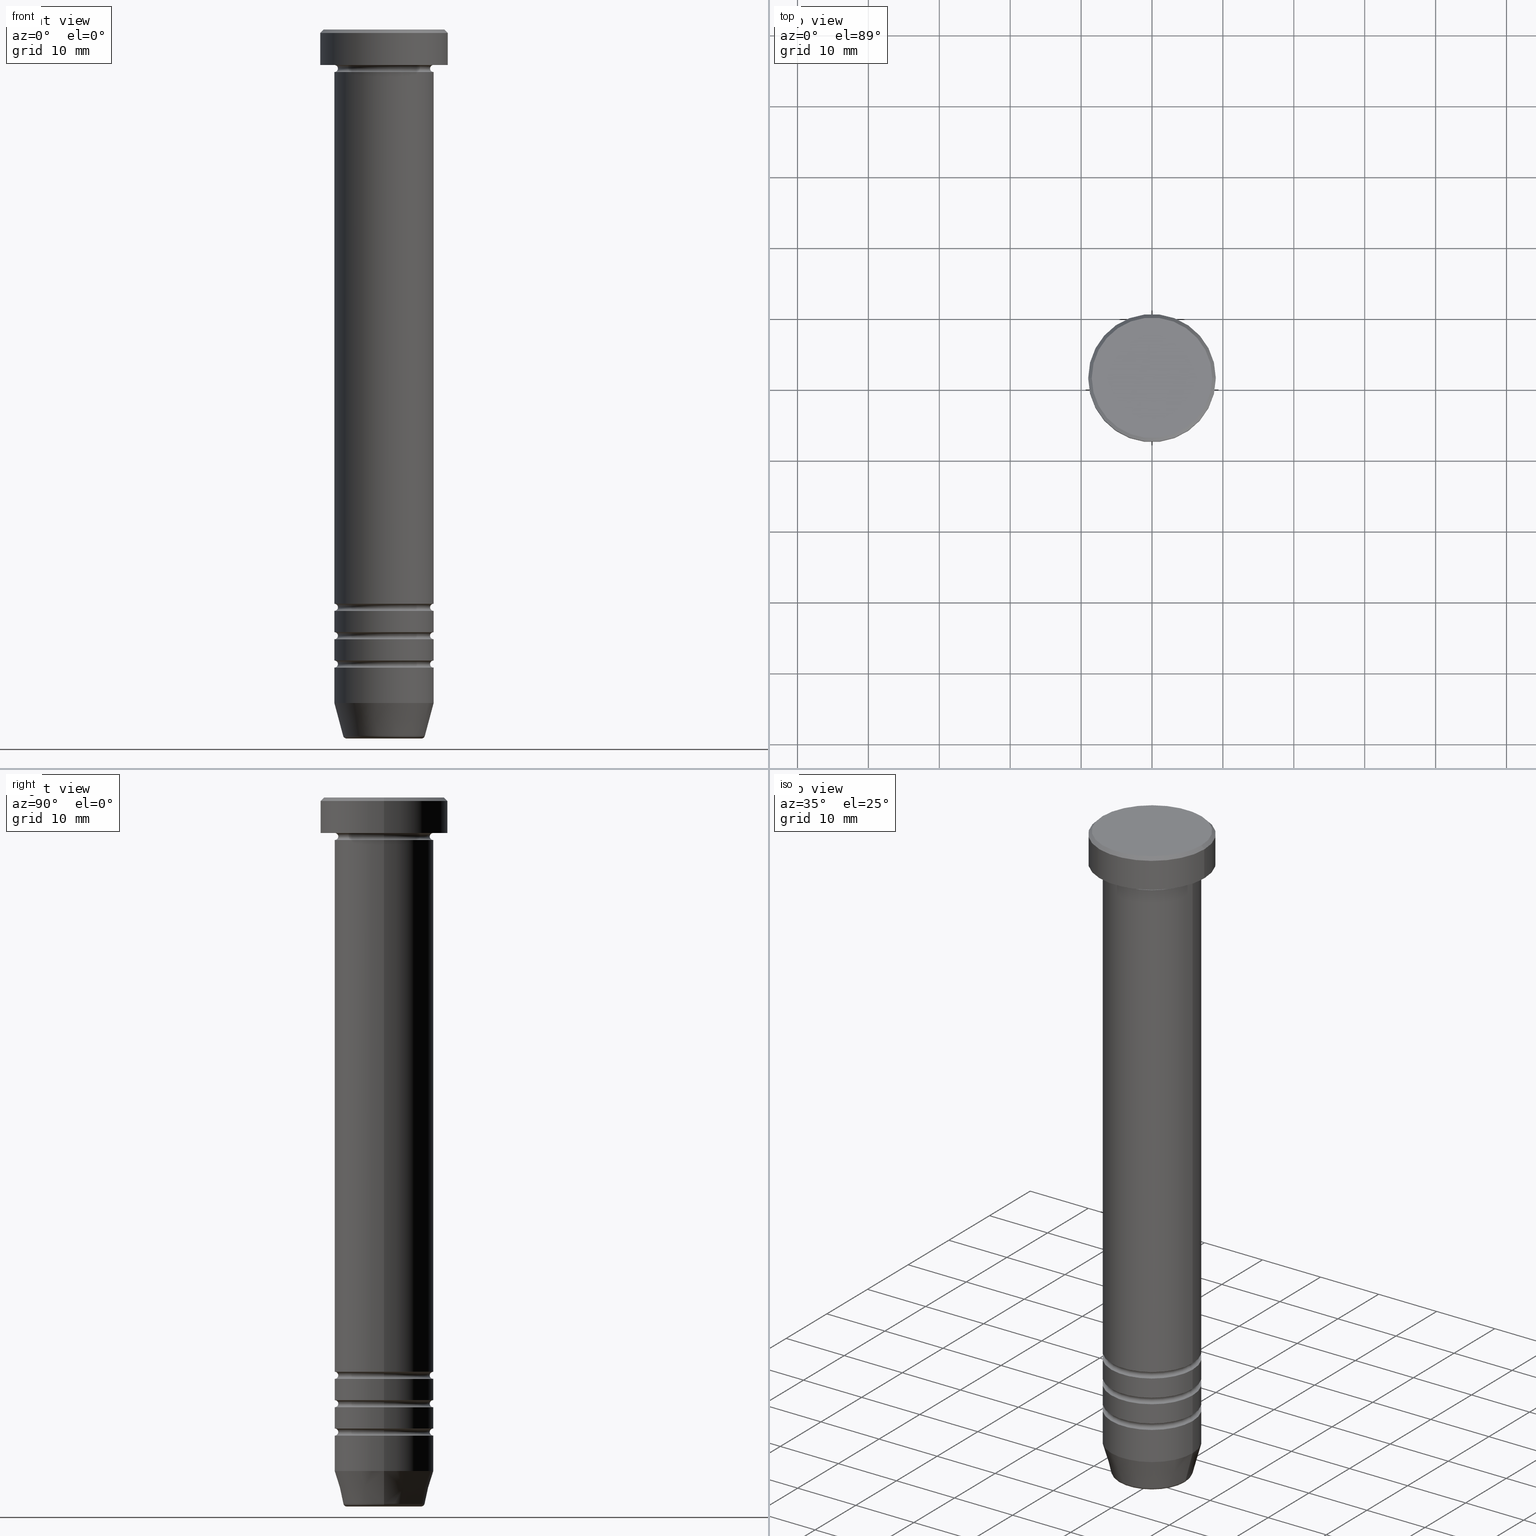
[diagram: canonical four-view strip — front | top / right | iso, engineering-drawing reading convention]
A machine part, canonical four-view strip (front | top / right | iso — engineering-drawing reading convention). The complete STEP part file that produces these views, byte-faithful:
ISO-10303-21;
HEADER;
FILE_DESCRIPTION (( 'STEP AP203' ),
    '1' );
FILE_NAME ('88d1.STEP',
    '2024-01-02T23:06:26',
    ( '' ),
    ( '' ),
    'SwSTEP 2.0',
    'SolidWorks 2019',
    '' );
FILE_SCHEMA (( 'CONFIG_CONTROL_DESIGN' ));
ENDSEC;

DATA;
#1 = DIRECTION ( 'NONE',  ( 0.000000000000000000, 0.000000000000000000, -1.000000000000000000 ) ) ;
#2 = DIRECTION ( 'NONE',  ( -0.000000000000000000, -0.000000000000000000, 1.000000000000000000 ) ) ;
#3 = EDGE_LOOP ( 'NONE', ( #746, #624, #283, #759 ) ) ;
#4 = ORIENTED_EDGE ( 'NONE', *, *, #913, .F. ) ;
#5 = DIRECTION ( 'NONE',  ( 0.000000000000000000, 0.000000000000000000, -1.000000000000000000 ) ) ;
#6 = CARTESIAN_POINT ( 'NONE',  ( 7.000000000000000000, 0.000000000000000000, -95.00000000000000000 ) ) ;
#7 = AXIS2_PLACEMENT_3D ( 'NONE', #165, #104, #169 ) ;
#8 = EDGE_LOOP ( 'NONE', ( #1054, #482, #889, #301 ) ) ;
#9 = AXIS2_PLACEMENT_3D ( 'NONE', #970, #226, #1061 ) ;
#10 = VERTEX_POINT ( 'NONE', #885 ) ;
#11 = AXIS2_PLACEMENT_3D ( 'NONE', #642, #1028, #810 ) ;
#12 = CIRCLE ( 'NONE', #804, 0.5000000000000004441 ) ;
#13 = CC_DESIGN_APPROVAL ( #67, ( #404 ) ) ;
#14 = EDGE_CURVE ( 'NONE', #228, #944, #665, .T. ) ;
#15 = DIRECTION ( 'NONE',  ( 1.000000000000000000, 0.000000000000000000, 0.000000000000000000 ) ) ;
#16 = CARTESIAN_POINT ( 'NONE',  ( 6.999999999999995559, 0.000000000000000000, -89.50000000000000000 ) ) ;
#17 = VERTEX_POINT ( 'NONE', #664 ) ;
#18 = ORIENTED_EDGE ( 'NONE', *, *, #873, .T. ) ;
#19 =( NAMED_UNIT ( * ) SI_UNIT ( $, .STERADIAN. ) SOLID_ANGLE_UNIT ( ) );
#20 = CARTESIAN_POINT ( 'NONE',  ( 0.000000000000000000, 0.000000000000000000, -81.00000000000000000 ) ) ;
#21 = EDGE_CURVE ( 'NONE', #372, #835, #230, .T. ) ;
#22 = CARTESIAN_POINT ( 'NONE',  ( 0.000000000000000000, 0.000000000000000000, -85.49999999999998579 ) ) ;
#23 = LINE ( 'NONE', #921, #251 ) ;
#24 = ORIENTED_EDGE ( 'NONE', *, *, #1010, .T. ) ;
#25 = CARTESIAN_POINT ( 'NONE',  ( -6.499999999999995559, 8.266365894244627431E-16, -89.50000000000000000 ) ) ;
#26 = FACE_OUTER_BOUND ( 'NONE', #634, .T. ) ;
#27 = AXIS2_PLACEMENT_3D ( 'NONE', #398, #768, #928 ) ;
#28 = ORIENTED_EDGE ( 'NONE', *, *, #659, .T. ) ;
#29 = CIRCLE ( 'NONE', #61, 6.999999999999992895 ) ;
#30 =( NAMED_UNIT ( * ) PLANE_ANGLE_UNIT ( ) SI_UNIT ( $, .RADIAN. ) );
#31 = AXIS2_PLACEMENT_3D ( 'NONE', #751, #498, #333 ) ;
#32 = TOROIDAL_SURFACE ( 'NONE', #899, 6.999999999999995559, 0.5000000000000000000 ) ;
#33 = CARTESIAN_POINT ( 'NONE',  ( 0.000000000000000000, 0.000000000000000000, -81.00000000000000000 ) ) ;
#34 = DIRECTION ( 'NONE',  ( 0.000000000000000000, 0.000000000000000000, -1.000000000000000000 ) ) ;
#35 = VERTEX_POINT ( 'NONE', #142 ) ;
#36 = DIRECTION ( 'NONE',  ( -1.000000000000000000, -1.224646799147351482E-16, 0.000000000000000000 ) ) ;
#37 = EDGE_CURVE ( 'NONE', #141, #358, #1049, .T. ) ;
#38 = FACE_OUTER_BOUND ( 'NONE', #187, .T. ) ;
#39 = DIRECTION ( 'NONE',  ( -1.000000000000000000, 0.000000000000000000, 0.000000000000000000 ) ) ;
#40 = DIRECTION ( 'NONE',  ( 1.000000000000000000, 0.000000000000000000, 0.000000000000000000 ) ) ;
#41 = ORIENTED_EDGE ( 'NONE', *, *, #504, .T. ) ;
#42 = CARTESIAN_POINT ( 'NONE',  ( 7.000000000000000000, 0.000000000000000000, -90.00000000000000000 ) ) ;
#43 = DIRECTION ( 'NONE',  ( 1.000000000000000000, 0.000000000000000000, 0.000000000000000000 ) ) ;
#44 = DIRECTION ( 'NONE',  ( -0.000000000000000000, -0.000000000000000000, 1.000000000000000000 ) ) ;
#45 = ORIENTED_EDGE ( 'NONE', *, *, #1025, .F. ) ;
#46 = AXIS2_PLACEMENT_3D ( 'NONE', #951, #1021, #39 ) ;
#47 = ADVANCED_FACE ( 'NONE', ( #969 ), #224, .T. ) ;
#48 = CIRCLE ( 'NONE', #615, 5.759553456999440435 ) ;
#49 = DIRECTION ( 'NONE',  ( -0.000000000000000000, -0.000000000000000000, 1.000000000000000000 ) ) ;
#50 = ADVANCED_FACE ( 'NONE', ( #82 ), #417, .T. ) ;
#51 = FACE_OUTER_BOUND ( 'NONE', #510, .T. ) ;
#52 = VERTEX_POINT ( 'NONE', #658 ) ;
#53 = CARTESIAN_POINT ( 'NONE',  ( 6.999999999999996447, 0.000000000000000000, 0.000000000000000000 ) ) ;
#54 = APPROVAL_DATE_TIME ( #702, #448 ) ;
#55 = DIRECTION ( 'NONE',  ( 0.000000000000000000, 0.000000000000000000, -1.000000000000000000 ) ) ;
#56 = EDGE_CURVE ( 'NONE', #1004, #769, #60, .T. ) ;
#57 = DIRECTION ( 'NONE',  ( 1.000000000000000000, 0.000000000000000000, 0.000000000000000000 ) ) ;
#58 = ORIENTED_EDGE ( 'NONE', *, *, #717, .F. ) ;
#59 = CYLINDRICAL_SURFACE ( 'NONE', #785, 9.000000000000000000 ) ;
#60 = CIRCLE ( 'NONE', #27, 7.000000000000000000 ) ;
#61 = AXIS2_PLACEMENT_3D ( 'NONE', #477, #68, #721 ) ;
#62 = VECTOR ( 'NONE', #343, 1000.000000000000000 ) ;
#63 = AXIS2_PLACEMENT_3D ( 'NONE', #334, #655, #660 ) ;
#64 = CARTESIAN_POINT ( 'NONE',  ( 0.000000000000000000, 0.000000000000000000, 0.000000000000000000 ) ) ;
#65 = ORIENTED_EDGE ( 'NONE', *, *, #770, .F. ) ;
#66 = APPROVAL_DATE_TIME ( #1060, #154 ) ;
#67 = APPROVAL ( #133, 'NEUR�EN�' ) ;
#68 = DIRECTION ( 'NONE',  ( -0.000000000000000000, -0.000000000000000000, 1.000000000000000000 ) ) ;
#69 = EDGE_LOOP ( 'NONE', ( #632, #954, #962, #520 ) ) ;
#70 = DIRECTION ( 'NONE',  ( -0.000000000000000000, -0.000000000000000000, 1.000000000000000000 ) ) ;
#71 = DIRECTION ( 'NONE',  ( 0.000000000000000000, 0.000000000000000000, -1.000000000000000000 ) ) ;
#72 = CIRCLE ( 'NONE', #712, 7.000000000000000000 ) ;
#73 = EDGE_CURVE ( 'NONE', #896, #160, #609, .T. ) ;
#74 = DIRECTION ( 'NONE',  ( 0.000000000000000000, 0.000000000000000000, -1.000000000000000000 ) ) ;
#75 = VECTOR ( 'NONE', #89, 1000.000000000000000 ) ;
#76 = VECTOR ( 'NONE', #1043, 1000.000000000000000 ) ;
#77 = ADVANCED_FACE ( 'NONE', ( #773 ), #663, .F. ) ;
#78 = CARTESIAN_POINT ( 'NONE',  ( -6.999999999999995559, 8.572527594031467273E-16, -81.50000000000000000 ) ) ;
#79 = DIRECTION ( 'NONE',  ( -0.000000000000000000, -0.000000000000000000, 1.000000000000000000 ) ) ;
#80 = VERTEX_POINT ( 'NONE', #337 ) ;
#81 = LOCAL_TIME ( 0, 6, 26.00000000000000000, #588 ) ;
#82 = FACE_OUTER_BOUND ( 'NONE', #3, .T. ) ;
#83 = CARTESIAN_POINT ( 'NONE',  ( -6.999999999999995559, 0.000000000000000000, -85.49999999999998579 ) ) ;
#84 = CARTESIAN_POINT ( 'NONE',  ( 9.000000000000000000, 0.000000000000000000, -0.4999999999999987232 ) ) ;
#85 = CARTESIAN_POINT ( 'NONE',  ( -9.000000000000000000, 1.102182119232617714E-15, 0.000000000000000000 ) ) ;
#86 = EDGE_CURVE ( 'NONE', #410, #52, #287, .T. ) ;
#87 = DIRECTION ( 'NONE',  ( 1.000000000000000000, 0.000000000000000000, 0.000000000000000000 ) ) ;
#88 = DIRECTION ( 'NONE',  ( 0.000000000000000000, 0.000000000000000000, -1.000000000000000000 ) ) ;
#89 = DIRECTION ( 'NONE',  ( -0.000000000000000000, -0.000000000000000000, 1.000000000000000000 ) ) ;
#90 = EDGE_LOOP ( 'NONE', ( #336, #564, #529, #319 ) ) ;
#91 = CYLINDRICAL_SURFACE ( 'NONE', #473, 6.999999999999996447 ) ;
#92 = AXIS2_PLACEMENT_3D ( 'NONE', #568, #894, #407 ) ;
#93 = CARTESIAN_POINT ( 'NONE',  ( 0.000000000000000000, 0.000000000000000000, -5.000000000000000888 ) ) ;
#94 = CIRCLE ( 'NONE', #440, 0.5000000000000004441 ) ;
#95 = EDGE_LOOP ( 'NONE', ( #271, #872, #162, #392 ) ) ;
#96 = AXIS2_PLACEMENT_3D ( 'NONE', #942, #539, #771 ) ;
#97 = VERTEX_POINT ( 'NONE', #866 ) ;
#98 = AXIS2_PLACEMENT_3D ( 'NONE', #356, #689, #1009 ) ;
#99 = CARTESIAN_POINT ( 'NONE',  ( -7.000000000000000000, 8.572527594031473190E-16, -95.00000000000000000 ) ) ;
#100 = DIRECTION ( 'NONE',  ( -1.000000000000000000, 0.000000000000000000, 0.000000000000000000 ) ) ;
#101 = PRODUCT_DEFINITION_SHAPE ( 'NONE', 'NONE',  #738 ) ;
#102 = CARTESIAN_POINT ( 'NONE',  ( 7.000000000000000000, 0.000000000000000000, -25.00000000000000000 ) ) ;
#103 = DIRECTION ( 'NONE',  ( -0.000000000000000000, -0.000000000000000000, 1.000000000000000000 ) ) ;
#104 = DIRECTION ( 'NONE',  ( -0.000000000000000000, -0.000000000000000000, 1.000000000000000000 ) ) ;
#105 = EDGE_LOOP ( 'NONE', ( #111, #322, #544, #180 ) ) ;
#106 = DIRECTION ( 'NONE',  ( 0.000000000000000000, 0.000000000000000000, -1.000000000000000000 ) ) ;
#107 = DIRECTION ( 'NONE',  ( -0.000000000000000000, -0.000000000000000000, 1.000000000000000000 ) ) ;
#108 = CARTESIAN_POINT ( 'NONE',  ( 0.000000000000000000, 0.000000000000000000, -5.500000000000001776 ) ) ;
#109 = ADVANCED_FACE ( 'NONE', ( #51 ), #270, .F. ) ;
#110 = CIRCLE ( 'NONE', #153, 7.000000000000000000 ) ;
#111 = ORIENTED_EDGE ( 'NONE', *, *, #979, .F. ) ;
#112 = AXIS2_PLACEMENT_3D ( 'NONE', #295, #865, #197 ) ;
#113 = CIRCLE ( 'NONE', #748, 6.499999999999995559 ) ;
#114 = APPROVAL_PERSON_ORGANIZATION ( #517, #154, #438 ) ;
#115 = CARTESIAN_POINT ( 'NONE',  ( -5.276590543854904780, 6.461959719943101475E-16, -99.49999999999998579 ) ) ;
#116 = DIRECTION ( 'NONE',  ( 0.000000000000000000, 0.000000000000000000, -1.000000000000000000 ) ) ;
#117 = DIRECTION ( 'NONE',  ( 1.000000000000000000, 0.000000000000000000, 0.000000000000000000 ) ) ;
#118 = ORIENTED_EDGE ( 'NONE', *, *, #37, .F. ) ;
#119 = DIRECTION ( 'NONE',  ( -1.000000000000000000, 0.000000000000000000, 0.000000000000000000 ) ) ;
#120 = CARTESIAN_POINT ( 'NONE',  ( 0.000000000000000000, 0.000000000000000000, -95.00000000000000000 ) ) ;
#121 = DIRECTION ( 'NONE',  ( 0.000000000000000000, 0.000000000000000000, -1.000000000000000000 ) ) ;
#122 = EDGE_CURVE ( 'NONE', #288, #367, #205, .T. ) ;
#123 = ADVANCED_FACE ( 'NONE', ( #1023 ), #357, .T. ) ;
#124 = CARTESIAN_POINT ( 'NONE',  ( 0.000000000000000000, 0.000000000000000000, -90.00000000000000000 ) ) ;
#125 = DIRECTION ( 'NONE',  ( 1.000000000000000000, 0.000000000000000000, 0.000000000000000000 ) ) ;
#126 = VERTEX_POINT ( 'NONE', #282 ) ;
#127 = AXIS2_PLACEMENT_3D ( 'NONE', #909, #502, #990 ) ;
#128 = AXIS2_PLACEMENT_3D ( 'NONE', #20, #327, #986 ) ;
#129 = TOROIDAL_SURFACE ( 'NONE', #561, 7.000000000000000888, 0.5000000000000000000 ) ;
#130 = EDGE_CURVE ( 'NONE', #754, #372, #110, .T. ) ;
#131 = CARTESIAN_POINT ( 'NONE',  ( -6.999999999999995559, 0.000000000000000000, -89.50000000000000000 ) ) ;
#132 = ORIENTED_EDGE ( 'NONE', *, *, #696, .T. ) ;
#133 = APPROVAL_STATUS ( 'not_yet_approved' ) ;
#134 = DIRECTION ( 'NONE',  ( 1.000000000000000000, 0.000000000000000000, 0.000000000000000000 ) ) ;
#135 = MANIFOLD_SOLID_BREP ( 'Zkosen�1', #910 ) ;
#136 = EDGE_CURVE ( 'NONE', #297, #693, #541, .T. ) ;
#137 = AXIS2_PLACEMENT_3D ( 'NONE', #388, #1039, #720 ) ;
#138 = CIRCLE ( 'NONE', #681, 9.000000000000000000 ) ;
#139 = DIRECTION ( 'NONE',  ( 1.000000000000000000, 0.000000000000000000, 0.000000000000000000 ) ) ;
#140 = CARTESIAN_POINT ( 'NONE',  ( 7.000000000000000000, 0.000000000000000000, -6.000000000000001776 ) ) ;
#141 = VERTEX_POINT ( 'NONE', #450 ) ;
#142 = CARTESIAN_POINT ( 'NONE',  ( -7.000000000000000000, 8.572527594031473190E-16, -25.00000000000000000 ) ) ;
#143 = EDGE_LOOP ( 'NONE', ( #646, #722, #988, #688 ) ) ;
#144 = DIRECTION ( 'NONE',  ( 0.000000000000000000, -1.000000000000000000, 0.000000000000000000 ) ) ;
#145 = ORIENTED_EDGE ( 'NONE', *, *, #167, .F. ) ;
#146 = CARTESIAN_POINT ( 'NONE',  ( 0.000000000000000000, 0.000000000000000000, 0.000000000000000000 ) ) ;
#147 = EDGE_CURVE ( 'NONE', #367, #288, #72, .T. ) ;
#148 = EDGE_CURVE ( 'NONE', #52, #17, #797, .T. ) ;
#149 = CARTESIAN_POINT ( 'NONE',  ( -6.999999999999998224, 8.572527594031471218E-16, -84.99999999999998579 ) ) ;
#150 = DIRECTION ( 'NONE',  ( -0.000000000000000000, -0.000000000000000000, 1.000000000000000000 ) ) ;
#151 = ORIENTED_EDGE ( 'NONE', *, *, #618, .F. ) ;
#152 = ORIENTED_EDGE ( 'NONE', *, *, #876, .T. ) ;
#153 = AXIS2_PLACEMENT_3D ( 'NONE', #710, #543, #623 ) ;
#154 = APPROVAL ( #848, 'NEUR�EN�' ) ;
#155 = AXIS2_PLACEMENT_3D ( 'NONE', #824, #232, #573 ) ;
#156 = AXIS2_PLACEMENT_3D ( 'NONE', #611, #935, #862 ) ;
#157 = DIRECTION ( 'NONE',  ( -0.000000000000000000, -0.000000000000000000, 1.000000000000000000 ) ) ;
#158 = ORIENTED_EDGE ( 'NONE', *, *, #56, .F. ) ;
#159 = TOROIDAL_SURFACE ( 'NONE', #293, 6.999999999999995559, 0.5000000000000000000 ) ;
#160 = VERTEX_POINT ( 'NONE', #902 ) ;
#161 = DIRECTION ( 'NONE',  ( 0.000000000000000000, 0.000000000000000000, -1.000000000000000000 ) ) ;
#162 = ORIENTED_EDGE ( 'NONE', *, *, #1044, .F. ) ;
#163 = CARTESIAN_POINT ( 'NONE',  ( 0.000000000000000000, 0.000000000000000000, -84.99999999999998579 ) ) ;
#164 = CARTESIAN_POINT ( 'NONE',  ( 6.999999999999992895, 0.000000000000000000, -89.00000000000000000 ) ) ;
#165 = CARTESIAN_POINT ( 'NONE',  ( 0.000000000000000000, 0.000000000000000000, -85.49999999999998579 ) ) ;
#166 = ORIENTED_EDGE ( 'NONE', *, *, #148, .F. ) ;
#167 = EDGE_CURVE ( 'NONE', #455, #10, #556, .T. ) ;
#168 = CARTESIAN_POINT ( 'NONE',  ( 0.000000000000000000, 0.000000000000000000, -5.500000000000001776 ) ) ;
#169 = DIRECTION ( 'NONE',  ( 1.000000000000000000, 0.000000000000000000, 0.000000000000000000 ) ) ;
#170 = AXIS2_PLACEMENT_3D ( 'NONE', #789, #628, #550 ) ;
#171 = DIRECTION ( 'NONE',  ( -1.000000000000000000, 0.000000000000000000, 0.000000000000000000 ) ) ;
#172 = APPROVAL_PERSON_ORGANIZATION ( #394, #448, #299 ) ;
#173 = DIRECTION ( 'NONE',  ( 0.000000000000000000, 0.000000000000000000, 1.000000000000000000 ) ) ;
#174 = CARTESIAN_POINT ( 'NONE',  ( -6.500000000000000888, 8.266365894244635319E-16, -5.500000000000001776 ) ) ;
#175 = ORIENTED_EDGE ( 'NONE', *, *, #14, .F. ) ;
#176 = EDGE_CURVE ( 'NONE', #707, #769, #227, .T. ) ;
#177 = APPLICATION_PROTOCOL_DEFINITION ( 'international standard', 'config_control_design', 1994, #547 ) ;
#178 = ADVANCED_FACE ( 'NONE', ( #661 ), #405, .T. ) ;
#179 = DIRECTION ( 'NONE',  ( -0.000000000000000000, -0.000000000000000000, 1.000000000000000000 ) ) ;
#180 = ORIENTED_EDGE ( 'NONE', *, *, #231, .F. ) ;
#181 = DIRECTION ( 'NONE',  ( 1.000000000000000000, 0.000000000000000000, 0.000000000000000000 ) ) ;
#182 = DIRECTION ( 'NONE',  ( -0.7071067811865451302, 0.000000000000000000, -0.7071067811865500152 ) ) ;
#183 = ADVANCED_FACE ( 'NONE', ( #317 ), #694, .F. ) ;
#184 = CARTESIAN_POINT ( 'NONE',  ( -6.499999999999995559, 8.266365894244630389E-16, -85.49999999999998579 ) ) ;
#185 = AXIS2_PLACEMENT_3D ( 'NONE', #131, #863, #121 ) ;
#186 = AXIS2_PLACEMENT_3D ( 'NONE', #146, #820, #484 ) ;
#187 = EDGE_LOOP ( 'NONE', ( #644, #981, #316, #653 ) ) ;
#188 = AXIS2_PLACEMENT_3D ( 'NONE', #33, #924, #506 ) ;
#189 = VECTOR ( 'NONE', #1005, 1000.000000000000114 ) ;
#190 = DIRECTION ( 'NONE',  ( 1.000000000000000000, 0.000000000000000000, 0.000000000000000000 ) ) ;
#191 = FACE_OUTER_BOUND ( 'NONE', #683, .T. ) ;
#192 = EDGE_CURVE ( 'NONE', #903, #693, #713, .T. ) ;
#193 = ORIENTED_EDGE ( 'NONE', *, *, #262, .T. ) ;
#194 = CARTESIAN_POINT ( 'NONE',  ( 6.999999999999995559, 8.572527594031467273E-16, -89.50000000000000000 ) ) ;
#195 = DIRECTION ( 'NONE',  ( -0.000000000000000000, -0.000000000000000000, 1.000000000000000000 ) ) ;
#196 = DIRECTION ( 'NONE',  ( -0.000000000000000000, -0.000000000000000000, 1.000000000000000000 ) ) ;
#197 = DIRECTION ( 'NONE',  ( -1.000000000000000000, 0.000000000000000000, -0.000000000000000000 ) ) ;
#198 = LINE ( 'NONE', #53, #332 ) ;
#199 = EDGE_CURVE ( 'NONE', #944, #141, #650, .T. ) ;
#200 = DIRECTION ( 'NONE',  ( 1.000000000000000000, 0.000000000000000000, 0.000000000000000000 ) ) ;
#201 = PERSON_AND_ORGANIZATION_ROLE ( 'classification_officer' ) ;
#202 = DIRECTION ( 'NONE',  ( -1.000000000000000000, 0.000000000000000000, 0.000000000000000000 ) ) ;
#203 = DIRECTION ( 'NONE',  ( 0.000000000000000000, -0.000000000000000000, 1.000000000000000000 ) ) ;
#204 = EDGE_LOOP ( 'NONE', ( #813, #406, #318, #284 ) ) ;
#205 = CIRCLE ( 'NONE', #1014, 7.000000000000000000 ) ;
#206 = CIRCLE ( 'NONE', #170, 6.499999999999995559 ) ;
#207 = AXIS2_PLACEMENT_3D ( 'NONE', #584, #905, #590 ) ;
#208 = FACE_OUTER_BOUND ( 'NONE', #575, .T. ) ;
#209 = AXIS2_PLACEMENT_3D ( 'NONE', #776, #359, #119 ) ;
#210 = DATE_TIME_ROLE ( 'classification_date' ) ;
#211 = PLANE ( 'NONE',  #112 ) ;
#212 = EDGE_LOOP ( 'NONE', ( #1008, #497, #791, #1031 ) ) ;
#213 = ORIENTED_EDGE ( 'NONE', *, *, #891, .T. ) ;
#214 = LINE ( 'NONE', #552, #76 ) ;
#215 = ADVANCED_FACE ( 'NONE', ( #486 ), #581, .T. ) ;
#216 = DIRECTION ( 'NONE',  ( 1.000000000000000000, 0.000000000000000000, 0.000000000000000000 ) ) ;
#217 = ORIENTED_EDGE ( 'NONE', *, *, #626, .F. ) ;
#218 = ORIENTED_EDGE ( 'NONE', *, *, #901, .F. ) ;
#219 = AXIS2_PLACEMENT_3D ( 'NONE', #709, #55, #286 ) ;
#220 = AXIS2_PLACEMENT_3D ( 'NONE', #814, #469, #74 ) ;
#221 = DIRECTION ( 'NONE',  ( 0.000000000000000000, 0.000000000000000000, -1.000000000000000000 ) ) ;
#222 = DIRECTION ( 'NONE',  ( -0.000000000000000000, -0.000000000000000000, 1.000000000000000000 ) ) ;
#223 = EDGE_CURVE ( 'NONE', #141, #423, #645, .T. ) ;
#224 = CYLINDRICAL_SURFACE ( 'NONE', #186, 6.999999999999996447 ) ;
#225 = EDGE_CURVE ( 'NONE', #896, #807, #980, .T. ) ;
#226 = DIRECTION ( 'NONE',  ( -0.000000000000000000, -0.000000000000000000, 1.000000000000000000 ) ) ;
#227 = LINE ( 'NONE', #888, #324 ) ;
#228 = VERTEX_POINT ( 'NONE', #740 ) ;
#229 = ADVANCED_BREP_SHAPE_REPRESENTATION ( '88d1', ( #135, #851, #859 ), #699 ) ;
#230 = LINE ( 'NONE', #488, #399 ) ;
#231 = EDGE_CURVE ( 'NONE', #126, #331, #836, .T. ) ;
#232 = DIRECTION ( 'NONE',  ( 0.000000000000000000, 0.000000000000000000, -1.000000000000000000 ) ) ;
#233 = CLOSED_SHELL ( 'NONE', ( #383, #1057, #684, #390, #864, #183, #569, #123, #47, #845, #593, #253, #585, #809, #256, #109, #467, #652, #277, #50, #795, #685, #991, #77, #832, #481 ) ) ;
#234 = DIRECTION ( 'NONE',  ( -1.000000000000000000, -1.224646799147351482E-16, 0.000000000000000000 ) ) ;
#235 = VECTOR ( 'NONE', #409, 1000.000000000000000 ) ;
#236 = DIRECTION ( 'NONE',  ( 1.000000000000000000, 0.000000000000000000, 0.000000000000000000 ) ) ;
#237 = DIRECTION ( 'NONE',  ( 0.000000000000000000, -1.000000000000000000, 0.000000000000000000 ) ) ;
#238 = ORIENTED_EDGE ( 'NONE', *, *, #262, .F. ) ;
#239 = ORIENTED_EDGE ( 'NONE', *, *, #411, .T. ) ;
#240 = DIRECTION ( 'NONE',  ( 0.000000000000000000, 0.000000000000000000, -1.000000000000000000 ) ) ;
#241 = CC_DESIGN_PERSON_AND_ORGANIZATION_ASSIGNMENT ( #963, #783, ( #508 ) ) ;
#242 = DIRECTION ( 'NONE',  ( 1.224646799147353207E-16, 1.000000000000000000, 0.000000000000000000 ) ) ;
#243 = FACE_OUTER_BOUND ( 'NONE', #266, .T. ) ;
#244 = DIRECTION ( 'NONE',  ( -1.000000000000000000, 1.224646799147353454E-16, 0.000000000000000000 ) ) ;
#245 = CARTESIAN_POINT ( 'NONE',  ( 0.000000000000000000, 0.000000000000000000, 0.000000000000000000 ) ) ;
#246 = ORIENTED_EDGE ( 'NONE', *, *, #225, .F. ) ;
#247 = CARTESIAN_POINT ( 'NONE',  ( 7.000000000000000000, 0.000000000000000000, -86.00000000000000000 ) ) ;
#248 = LINE ( 'NONE', #940, #189 ) ;
#249 = LINE ( 'NONE', #844, #880 ) ;
#250 = CARTESIAN_POINT ( 'NONE',  ( -6.999999999999992895, 8.572527594031466287E-16, -81.00000000000000000 ) ) ;
#251 = VECTOR ( 'NONE', #381, 1000.000000000000000 ) ;
#252 = ORIENTED_EDGE ( 'NONE', *, *, #606, .F. ) ;
#253 = ADVANCED_FACE ( 'NONE', ( #801 ), #811, .T. ) ;
#254 = CC_DESIGN_APPROVAL ( #448, ( #508 ) ) ;
#255 = DIRECTION ( 'NONE',  ( 1.000000000000000000, 0.000000000000000000, 0.000000000000000000 ) ) ;
#256 = ADVANCED_FACE ( 'NONE', ( #719 ), #914, .T. ) ;
#257 = CARTESIAN_POINT ( 'NONE',  ( 0.000000000000000000, 0.000000000000000000, -81.50000000000000000 ) ) ;
#258 = CARTESIAN_POINT ( 'NONE',  ( 0.000000000000000000, 0.000000000000000000, -86.00000000000000000 ) ) ;
#259 = CARTESIAN_POINT ( 'NONE',  ( 0.000000000000000000, 0.000000000000000000, 0.000000000000000000 ) ) ;
#260 = EDGE_LOOP ( 'NONE', ( #582, #638, #1047, #744 ) ) ;
#261 = DIRECTION ( 'NONE',  ( -0.000000000000000000, -0.000000000000000000, 1.000000000000000000 ) ) ;
#262 = EDGE_CURVE ( 'NONE', #97, #854, #799, .T. ) ;
#263 = DIRECTION ( 'NONE',  ( 1.000000000000000000, 0.000000000000000000, 0.000000000000000000 ) ) ;
#264 = DIRECTION ( 'NONE',  ( 1.000000000000000000, 0.000000000000000000, 0.000000000000000000 ) ) ;
#265 = DIRECTION ( 'NONE',  ( -1.000000000000000000, 1.224646799147353454E-16, 0.000000000000000000 ) ) ;
#266 = EDGE_LOOP ( 'NONE', ( #700, #625, #386, #365 ) ) ;
#267 = CARTESIAN_POINT ( 'NONE',  ( 8.500000000000003553, 1.071565949253934321E-15, 0.000000000000000000 ) ) ;
#268 = DIRECTION ( 'NONE',  ( 1.000000000000000000, 0.000000000000000000, 0.000000000000000000 ) ) ;
#269 = VECTOR ( 'NONE', #278, 1000.000000000000000 ) ;
#270 = PLANE ( 'NONE',  #629 ) ;
#271 = ORIENTED_EDGE ( 'NONE', *, *, #760, .T. ) ;
#272 = CIRCLE ( 'NONE', #821, 7.000000000000000000 ) ;
#273 = AXIS2_PLACEMENT_3D ( 'NONE', #622, #800, #554 ) ;
#274 = CARTESIAN_POINT ( 'NONE',  ( -5.276590543854904780, 6.757689212787770846E-16, -99.99999999999998579 ) ) ;
#275 = DIRECTION ( 'NONE',  ( 1.000000000000000000, 0.000000000000000000, 0.000000000000000000 ) ) ;
#276 = DIRECTION ( 'NONE',  ( -0.000000000000000000, -0.000000000000000000, 1.000000000000000000 ) ) ;
#277 = ADVANCED_FACE ( 'NONE', ( #726 ), #566, .T. ) ;
#278 = DIRECTION ( 'NONE',  ( -0.000000000000000000, -0.000000000000000000, 1.000000000000000000 ) ) ;
#279 = EDGE_LOOP ( 'NONE', ( #583, #379, #441, #4 ) ) ;
#280 = PERSON_AND_ORGANIZATION_ROLE ( 'design_supplier' ) ;
#281 = DIRECTION ( 'NONE',  ( -0.000000000000000000, -0.000000000000000000, 1.000000000000000000 ) ) ;
#282 = CARTESIAN_POINT ( 'NONE',  ( 5.276590543854904780, 0.000000000000000000, -99.99999999999998579 ) ) ;
#283 = ORIENTED_EDGE ( 'NONE', *, *, #231, .T. ) ;
#284 = ORIENTED_EDGE ( 'NONE', *, *, #781, .F. ) ;
#285 = DIRECTION ( 'NONE',  ( -1.000000000000000000, 0.000000000000000000, 0.000000000000000000 ) ) ;
#286 = DIRECTION ( 'NONE',  ( -1.000000000000000000, 0.000000000000000000, 0.000000000000000000 ) ) ;
#287 = LINE ( 'NONE', #470, #269 ) ;
#288 = VERTEX_POINT ( 'NONE', #140 ) ;
#289 = CIRCLE ( 'NONE', #418, 6.500000000000000888 ) ;
#290 = CIRCLE ( 'NONE', #491, 6.999999999999998224 ) ;
#291 = EDGE_CURVE ( 'NONE', #707, #977, #29, .T. ) ;
#292 = ORIENTED_EDGE ( 'NONE', *, *, #960, .T. ) ;
#293 = AXIS2_PLACEMENT_3D ( 'NONE', #22, #103, #255 ) ;
#294 = PERSON_AND_ORGANIZATION ( #837, #839 ) ;
#295 = CARTESIAN_POINT ( 'NONE',  ( 0.000000000000000000, -3.469446951953614189E-15, -25.00000000000000000 ) ) ;
#296 = EDGE_LOOP ( 'NONE', ( #28, #787, #158, #978 ) ) ;
#297 = VERTEX_POINT ( 'NONE', #313 ) ;
#298 = EDGE_LOOP ( 'NONE', ( #65, #213, #496, #831 ) ) ;
#299 = APPROVAL_ROLE ( '' ) ;
#300 = DIRECTION ( 'NONE',  ( 1.000000000000000000, 0.000000000000000000, 0.000000000000000000 ) ) ;
#301 = ORIENTED_EDGE ( 'NONE', *, *, #223, .F. ) ;
#302 = COORDINATED_UNIVERSAL_TIME_OFFSET ( 1, 0, .AHEAD. ) ;
#303 = EDGE_CURVE ( 'NONE', #160, #896, #594, .T. ) ;
#304 = FACE_OUTER_BOUND ( 'NONE', #826, .T. ) ;
#305 = ADVANCED_FACE ( 'NONE', ( #892 ), #798, .F. ) ;
#306 = DIRECTION ( 'NONE',  ( -0.000000000000000000, -0.000000000000000000, 1.000000000000000000 ) ) ;
#307 = ORIENTED_EDGE ( 'NONE', *, *, #815, .T. ) ;
#308 = DIRECTION ( 'NONE',  ( 0.000000000000000000, 0.000000000000000000, -1.000000000000000000 ) ) ;
#309 = AXIS2_PLACEMENT_3D ( 'NONE', #389, #71, #736 ) ;
#310 = CIRCLE ( 'NONE', #998, 6.500000000000000888 ) ;
#311 = VECTOR ( 'NONE', #514, 1000.000000000000114 ) ;
#312 = DIRECTION ( 'NONE',  ( 1.224646799147353207E-16, 1.000000000000000000, 0.000000000000000000 ) ) ;
#313 = CARTESIAN_POINT ( 'NONE',  ( -7.000000000000000000, 8.572527594031473190E-16, -90.00000000000000000 ) ) ;
#314 = EDGE_LOOP ( 'NONE', ( #651, #882 ) ) ;
#315 = ADVANCED_FACE ( 'NONE', ( #26 ), #439, .T. ) ;
#316 = ORIENTED_EDGE ( 'NONE', *, *, #537, .F. ) ;
#317 = FACE_OUTER_BOUND ( 'NONE', #69, .T. ) ;
#318 = ORIENTED_EDGE ( 'NONE', *, *, #923, .F. ) ;
#319 = ORIENTED_EDGE ( 'NONE', *, *, #723, .F. ) ;
#320 = LINE ( 'NONE', #429, #311 ) ;
#321 = CARTESIAN_POINT ( 'NONE',  ( -6.999999999999999112, 8.572527594031472204E-16, 0.000000000000000000 ) ) ;
#322 = ORIENTED_EDGE ( 'NONE', *, *, #808, .T. ) ;
#323 = DIRECTION ( 'NONE',  ( 1.000000000000000000, 0.000000000000000000, 0.000000000000000000 ) ) ;
#324 = VECTOR ( 'NONE', #79, 1000.000000000000000 ) ;
#325 = CC_DESIGN_DATE_AND_TIME_ASSIGNMENT ( #373, #733, ( #738 ) ) ;
#326 = TOROIDAL_SURFACE ( 'NONE', #677, 7.000000000000000888, 0.5000000000000000000 ) ;
#327 = DIRECTION ( 'NONE',  ( -0.000000000000000000, -0.000000000000000000, 1.000000000000000000 ) ) ;
#328 = AXIS2_PLACEMENT_3D ( 'NONE', #817, #237, #161 ) ;
#329 = CIRCLE ( 'NONE', #220, 0.5000000000000004441 ) ;
#330 = DIRECTION ( 'NONE',  ( -0.000000000000000000, -0.000000000000000000, 1.000000000000000000 ) ) ;
#331 = VERTEX_POINT ( 'NONE', #906 ) ;
#332 = VECTOR ( 'NONE', #531, 1000.000000000000000 ) ;
#333 = DIRECTION ( 'NONE',  ( -1.000000000000000000, 0.000000000000000000, 0.000000000000000000 ) ) ;
#334 = CARTESIAN_POINT ( 'NONE',  ( 7.000000000000000888, 8.572527594031474176E-16, -5.500000000000001776 ) ) ;
#335 = DIRECTION ( 'NONE',  ( 0.000000000000000000, -1.000000000000000000, 0.000000000000000000 ) ) ;
#336 = ORIENTED_EDGE ( 'NONE', *, *, #176, .F. ) ;
#337 = CARTESIAN_POINT ( 'NONE',  ( 6.500000000000000888, 0.000000000000000000, -5.500000000000001776 ) ) ;
#338 = EDGE_LOOP ( 'NONE', ( #545, #893, #803, #252 ) ) ;
#339 = EDGE_CURVE ( 'NONE', #331, #567, #949, .T. ) ;
#340 = CARTESIAN_POINT ( 'NONE',  ( 0.000000000000000000, 0.000000000000000000, -81.50000000000000000 ) ) ;
#341 = ADVANCED_FACE ( 'NONE', ( #607 ), #630, .T. ) ;
#342 = EDGE_LOOP ( 'NONE', ( #830, #904, #478, #574 ) ) ;
#343 = DIRECTION ( 'NONE',  ( -0.000000000000000000, -0.000000000000000000, 1.000000000000000000 ) ) ;
#344 = AXIS2_PLACEMENT_3D ( 'NONE', #600, #528, #117 ) ;
#345 = DIRECTION ( 'NONE',  ( 1.000000000000000000, 0.000000000000000000, 0.000000000000000000 ) ) ;
#346 = AXIS2_PLACEMENT_3D ( 'NONE', #245, #330, #591 ) ;
#347 = AXIS2_PLACEMENT_3D ( 'NONE', #115, #523, #444 ) ;
#348 = ORIENTED_EDGE ( 'NONE', *, *, #303, .F. ) ;
#349 = AXIS2_PLACEMENT_3D ( 'NONE', #849, #352, #190 ) ;
#350 = ADVANCED_FACE ( 'NONE', ( #435 ), #515, .T. ) ;
#351 = COORDINATED_UNIVERSAL_TIME_OFFSET ( 1, 0, .AHEAD. ) ;
#352 = DIRECTION ( 'NONE',  ( -0.000000000000000000, -0.000000000000000000, 1.000000000000000000 ) ) ;
#353 = FACE_OUTER_BOUND ( 'NONE', #260, .T. ) ;
#354 = FACE_OUTER_BOUND ( 'NONE', #861, .T. ) ;
#355 = ORIENTED_EDGE ( 'NONE', *, *, #947, .T. ) ;
#356 = CARTESIAN_POINT ( 'NONE',  ( 0.000000000000000000, 0.000000000000000000, -99.99999999999998579 ) ) ;
#357 = CYLINDRICAL_SURFACE ( 'NONE', #576, 6.999999999999999112 ) ;
#358 = VERTEX_POINT ( 'NONE', #604 ) ;
#359 = DIRECTION ( 'NONE',  ( 0.000000000000000000, 0.000000000000000000, -1.000000000000000000 ) ) ;
#360 = ADVANCED_FACE ( 'NONE', ( #354 ), #326, .F. ) ;
#361 = CYLINDRICAL_SURFACE ( 'NONE', #9, 7.000000000000000000 ) ;
#362 = AXIS2_PLACEMENT_3D ( 'NONE', #396, #150, #972 ) ;
#363 = AXIS2_PLACEMENT_3D ( 'NONE', #452, #116, #376 ) ;
#364 = DIRECTION ( 'NONE',  ( 1.000000000000000000, 0.000000000000000000, 0.000000000000000000 ) ) ;
#365 = ORIENTED_EDGE ( 'NONE', *, *, #762, .F. ) ;
#366 = AXIS2_PLACEMENT_3D ( 'NONE', #459, #375, #932 ) ;
#367 = VERTEX_POINT ( 'NONE', #927 ) ;
#368 = CIRCLE ( 'NONE', #492, 6.499999999999995559 ) ;
#369 = DIRECTION ( 'NONE',  ( -1.000000000000000000, -1.224646799147351482E-16, 0.000000000000000000 ) ) ;
#370 = DIRECTION ( 'NONE',  ( 0.000000000000000000, -0.000000000000000000, 1.000000000000000000 ) ) ;
#371 = CARTESIAN_POINT ( 'NONE',  ( 6.999999999999992895, 0.000000000000000000, -81.00000000000000000 ) ) ;
#372 = VERTEX_POINT ( 'NONE', #6 ) ;
#373 = DATE_AND_TIME ( #480, #968 ) ;
#374 = DIRECTION ( 'NONE',  ( -1.000000000000000000, 1.224646799147351482E-16, 0.000000000000000000 ) ) ;
#375 = DIRECTION ( 'NONE',  ( 0.000000000000000000, 0.000000000000000000, -1.000000000000000000 ) ) ;
#376 = DIRECTION ( 'NONE',  ( -1.000000000000000000, 0.000000000000000000, 0.000000000000000000 ) ) ;
#377 = EDGE_CURVE ( 'NONE', #944, #553, #471, .T. ) ;
#378 = EDGE_CURVE ( 'NONE', #754, #297, #500, .T. ) ;
#379 = ORIENTED_EDGE ( 'NONE', *, *, #659, .F. ) ;
#380 = ORIENTED_EDGE ( 'NONE', *, *, #672, .T. ) ;
#381 = DIRECTION ( 'NONE',  ( -0.000000000000000000, -0.000000000000000000, 1.000000000000000000 ) ) ;
#382 = ORIENTED_EDGE ( 'NONE', *, *, #947, .F. ) ;
#383 = ADVANCED_FACE ( 'NONE', ( #414 ), #1015, .F. ) ;
#384 = AXIS2_PLACEMENT_3D ( 'NONE', #1046, #306, #1051 ) ;
#385 = AXIS2_PLACEMENT_3D ( 'NONE', #571, #221, #823 ) ;
#386 = ORIENTED_EDGE ( 'NONE', *, *, #504, .F. ) ;
#387 = CIRCLE ( 'NONE', #63, 0.5000000000000004441 ) ;
#388 = CARTESIAN_POINT ( 'NONE',  ( 0.000000000000000000, 0.000000000000000000, -25.00000000000000000 ) ) ;
#389 = CARTESIAN_POINT ( 'NONE',  ( 0.000000000000000000, 0.000000000000000000, -89.50000000000000000 ) ) ;
#390 = ADVANCED_FACE ( 'NONE', ( #243 ), #505, .F. ) ;
#391 = DIRECTION ( 'NONE',  ( 1.000000000000000000, 0.000000000000000000, 0.000000000000000000 ) ) ;
#392 = ORIENTED_EDGE ( 'NONE', *, *, #434, .F. ) ;
#393 = DIRECTION ( 'NONE',  ( -0.000000000000000000, -0.000000000000000000, 1.000000000000000000 ) ) ;
#394 = PERSON_AND_ORGANIZATION ( #837, #839 ) ;
#395 = EDGE_CURVE ( 'NONE', #80, #415, #289, .T. ) ;
#396 = CARTESIAN_POINT ( 'NONE',  ( 0.000000000000000000, 0.000000000000000000, -89.50000000000000000 ) ) ;
#397 = EDGE_LOOP ( 'NONE', ( #922, #825, #416, #457 ) ) ;
#398 = CARTESIAN_POINT ( 'NONE',  ( 0.000000000000000000, 0.000000000000000000, -86.00000000000000000 ) ) ;
#399 = VECTOR ( 'NONE', #393, 1000.000000000000000 ) ;
#400 = DIRECTION ( 'NONE',  ( 1.000000000000000000, 0.000000000000000000, 0.000000000000000000 ) ) ;
#401 = VECTOR ( 'NONE', #276, 1000.000000000000000 ) ;
#402 = AXIS2_PLACEMENT_3D ( 'NONE', #674, #850, #234 ) ;
#403 = FACE_BOUND ( 'NONE', #877, .T. ) ;
#404 = SECURITY_CLASSIFICATION ( '', '', #620 ) ;
#405 = CYLINDRICAL_SURFACE ( 'NONE', #834, 7.000000000000000000 ) ;
#406 = ORIENTED_EDGE ( 'NONE', *, *, #654, .T. ) ;
#407 = DIRECTION ( 'NONE',  ( 1.000000000000000000, 0.000000000000000000, 0.000000000000000000 ) ) ;
#408 = CARTESIAN_POINT ( 'NONE',  ( 0.000000000000000000, 0.000000000000000000, -99.99999999999998579 ) ) ;
#409 = DIRECTION ( 'NONE',  ( -0.000000000000000000, -0.000000000000000000, 1.000000000000000000 ) ) ;
#410 = VERTEX_POINT ( 'NONE', #250 ) ;
#411 = EDGE_CURVE ( 'NONE', #673, #451, #558, .T. ) ;
#412 = CARTESIAN_POINT ( 'NONE',  ( 0.000000000000000000, 0.000000000000000000, -85.49999999999998579 ) ) ;
#413 = CARTESIAN_POINT ( 'NONE',  ( -6.999999999999995559, 8.572527594031467273E-16, -89.50000000000000000 ) ) ;
#414 = FACE_OUTER_BOUND ( 'NONE', #446, .T. ) ;
#415 = VERTEX_POINT ( 'NONE', #174 ) ;
#416 = ORIENTED_EDGE ( 'NONE', *, *, #37, .T. ) ;
#417 = TOROIDAL_SURFACE ( 'NONE', #92, 5.276590543854904780, 0.5000000000000000000 ) ;
#418 = AXIS2_PLACEMENT_3D ( 'NONE', #599, #587, #833 ) ;
#419 = DIRECTION ( 'NONE',  ( 1.000000000000000000, 0.000000000000000000, 0.000000000000000000 ) ) ;
#420 = TOROIDAL_SURFACE ( 'NONE', #560, 6.999999999999995559, 0.5000000000000000000 ) ;
#421 = AXIS2_PLACEMENT_3D ( 'NONE', #408, #88, #586 ) ;
#422 = DIRECTION ( 'NONE',  ( -0.000000000000000000, -0.000000000000000000, 1.000000000000000000 ) ) ;
#423 = VERTEX_POINT ( 'NONE', #752 ) ;
#424 = ORIENTED_EDGE ( 'NONE', *, *, #606, .T. ) ;
#425 = EDGE_CURVE ( 'NONE', #977, #903, #94, .T. ) ;
#426 = DIRECTION ( 'NONE',  ( -0.000000000000000000, -0.000000000000000000, 1.000000000000000000 ) ) ;
#427 = PRODUCT ( '88d1', '88d1', '', ( #589 ) ) ;
#428 = EDGE_CURVE ( 'NONE', #160, #974, #841, .T. ) ;
#429 = CARTESIAN_POINT ( 'NONE',  ( 5.660254037844384634, 0.000000000000000000, -99.99999999999998579 ) ) ;
#430 = CARTESIAN_POINT ( 'NONE',  ( 9.000000000000000000, 0.000000000000000000, 0.000000000000000000 ) ) ;
#431 = ORIENTED_EDGE ( 'NONE', *, *, #136, .T. ) ;
#432 = DIRECTION ( 'NONE',  ( 1.000000000000000000, 0.000000000000000000, 0.000000000000000000 ) ) ;
#433 = CARTESIAN_POINT ( 'NONE',  ( 0.000000000000000000, 0.000000000000000000, -85.49999999999998579 ) ) ;
#434 = EDGE_CURVE ( 'NONE', #455, #17, #23, .T. ) ;
#435 = FACE_OUTER_BOUND ( 'NONE', #212, .T. ) ;
#436 = ORIENTED_EDGE ( 'NONE', *, *, #960, .F. ) ;
#437 = CARTESIAN_POINT ( 'NONE',  ( 6.999999999999995559, 8.572527594031467273E-16, -81.50000000000000000 ) ) ;
#438 = APPROVAL_ROLE ( '' ) ;
#439 = CYLINDRICAL_SURFACE ( 'NONE', #346, 7.000000000000000000 ) ;
#440 = AXIS2_PLACEMENT_3D ( 'NONE', #16, #335, #509 ) ;
#441 = ORIENTED_EDGE ( 'NONE', *, *, #425, .T. ) ;
#442 = CC_DESIGN_SECURITY_CLASSIFICATION ( #404, ( #508 ) ) ;
#443 = APPLICATION_PROTOCOL_DEFINITION ( 'international standard', 'config_control_design', 1994, #489 ) ;
#444 = DIRECTION ( 'NONE',  ( -1.000000000000000000, 1.224646799147351482E-16, 0.000000000000000000 ) ) ;
#445 = CARTESIAN_POINT ( 'NONE',  ( 0.000000000000000000, 0.000000000000000000, 0.000000000000000000 ) ) ;
#446 = EDGE_LOOP ( 'NONE', ( #995, #24, #562, #118 ) ) ;
#447 = CARTESIAN_POINT ( 'NONE',  ( -7.000000000000000888, 8.572527594031474176E-16, -5.500000000000001776 ) ) ;
#448 = APPROVAL ( #959, 'NEUR�EN�' ) ;
#449 = FACE_OUTER_BOUND ( 'NONE', #90, .T. ) ;
#450 = CARTESIAN_POINT ( 'NONE',  ( -7.000000000000000888, 8.572527594031474176E-16, -82.00000000000000000 ) ) ;
#451 = VERTEX_POINT ( 'NONE', #943 ) ;
#452 = CARTESIAN_POINT ( 'NONE',  ( 0.000000000000000000, 0.000000000000000000, -81.50000000000000000 ) ) ;
#453 = AXIS2_PLACEMENT_3D ( 'NONE', #983, #1048, #308 ) ;
#454 = AXIS2_PLACEMENT_3D ( 'NONE', #640, #961, #216 ) ;
#455 = VERTEX_POINT ( 'NONE', #371 ) ;
#456 = CIRCLE ( 'NONE', #933, 6.999999999999992895 ) ;
#457 = ORIENTED_EDGE ( 'NONE', *, *, #996, .T. ) ;
#458 = CIRCLE ( 'NONE', #953, 7.000000000000000000 ) ;
#459 = CARTESIAN_POINT ( 'NONE',  ( 0.000000000000000000, 0.000000000000000000, -99.99999999999998579 ) ) ;
#460 = EDGE_CURVE ( 'NONE', #451, #673, #697, .T. ) ;
#461 = DATE_AND_TIME ( #950, #999 ) ;
#462 = CARTESIAN_POINT ( 'NONE',  ( -7.000000000000000000, 8.572527594031473190E-16, 0.000000000000000000 ) ) ;
#463 = ADVANCED_FACE ( 'NONE', ( #703 ), #856, .T. ) ;
#464 = ORIENTED_EDGE ( 'NONE', *, *, #723, .T. ) ;
#465 = APPROVAL_ROLE ( '' ) ;
#466 = CARTESIAN_POINT ( 'NONE',  ( 0.000000000000000000, 0.000000000000000000, 0.000000000000000000 ) ) ;
#467 = ADVANCED_FACE ( 'NONE', ( #941 ), #211, .F. ) ;
#468 = ORIENTED_EDGE ( 'NONE', *, *, #538, .T. ) ;
#469 = DIRECTION ( 'NONE',  ( -0.000000000000000000, -1.000000000000000000, -0.000000000000000000 ) ) ;
#470 = CARTESIAN_POINT ( 'NONE',  ( -6.999999999999996447, 8.572527594031468259E-16, 0.000000000000000000 ) ) ;
#471 = CIRCLE ( 'NONE', #879, 0.5000000000000004441 ) ;
#472 = EDGE_LOOP ( 'NONE', ( #601, #292, #431, #741 ) ) ;
#473 = AXIS2_PLACEMENT_3D ( 'NONE', #513, #993, #419 ) ;
#474 = AXIS2_PLACEMENT_3D ( 'NONE', #466, #49, #1033 ) ;
#475 = AXIS2_PLACEMENT_3D ( 'NONE', #975, #494, #828 ) ;
#476 = COORDINATED_UNIVERSAL_TIME_OFFSET ( 1, 0, .AHEAD. ) ;
#477 = CARTESIAN_POINT ( 'NONE',  ( 0.000000000000000000, 0.000000000000000000, -89.00000000000000000 ) ) ;
#478 = ORIENTED_EDGE ( 'NONE', *, *, #916, .T. ) ;
#479 = ORIENTED_EDGE ( 'NONE', *, *, #626, .T. ) ;
#480 = CALENDAR_DATE ( 2024, 3, 1 ) ;
#481 = ADVANCED_FACE ( 'NONE', ( #540 ), #542, .F. ) ;
#482 = ORIENTED_EDGE ( 'NONE', *, *, #570, .T. ) ;
#483 = DIRECTION ( 'NONE',  ( -0.000000000000000000, -0.000000000000000000, 1.000000000000000000 ) ) ;
#484 = DIRECTION ( 'NONE',  ( 1.000000000000000000, 0.000000000000000000, 0.000000000000000000 ) ) ;
#485 = CARTESIAN_POINT ( 'NONE',  ( 0.000000000000000000, 0.000000000000000000, -5.500000000000001776 ) ) ;
#486 = FACE_OUTER_BOUND ( 'NONE', #314, .T. ) ;
#487 = EDGE_LOOP ( 'NONE', ( #967, #614, #218, #58 ) ) ;
#488 = CARTESIAN_POINT ( 'NONE',  ( 7.000000000000000000, 0.000000000000000000, 0.000000000000000000 ) ) ;
#489 = APPLICATION_CONTEXT ( 'configuration controlled 3d designs of mechanical parts and assemblies' ) ;
#490 = AXIS2_PLACEMENT_3D ( 'NONE', #64, #222, #391 ) ;
#491 = AXIS2_PLACEMENT_3D ( 'NONE', #532, #691, #268 ) ;
#492 = AXIS2_PLACEMENT_3D ( 'NONE', #572, #816, #236 ) ;
#493 = EDGE_CURVE ( 'NONE', #35, #367, #869, .T. ) ;
#494 = DIRECTION ( 'NONE',  ( -0.000000000000000000, -0.000000000000000000, 1.000000000000000000 ) ) ;
#495 = CARTESIAN_POINT ( 'NONE',  ( 0.000000000000000000, 0.000000000000000000, -82.00000000000000000 ) ) ;
#496 = ORIENTED_EDGE ( 'NONE', *, *, #147, .T. ) ;
#497 = ORIENTED_EDGE ( 'NONE', *, *, #225, .T. ) ;
#498 = DIRECTION ( 'NONE',  ( 0.000000000000000000, 0.000000000000000000, -1.000000000000000000 ) ) ;
#499 = CARTESIAN_POINT ( 'NONE',  ( 0.000000000000000000, 0.000000000000000000, -0.4999999999999987232 ) ) ;
#500 = LINE ( 'NONE', #829, #75 ) ;
#501 = ORIENTED_EDGE ( 'NONE', *, *, #377, .F. ) ;
#502 = DIRECTION ( 'NONE',  ( 0.000000000000000000, 0.000000000000000000, -1.000000000000000000 ) ) ;
#503 = ADVANCED_FACE ( 'NONE', ( #1019 ), #965, .F. ) ;
#504 = EDGE_CURVE ( 'NONE', #946, #553, #206, .T. ) ;
#505 = TOROIDAL_SURFACE ( 'NONE', #7, 6.999999999999995559, 0.5000000000000000000 ) ;
#506 = DIRECTION ( 'NONE',  ( 1.000000000000000000, 0.000000000000000000, 0.000000000000000000 ) ) ;
#507 = AXIS2_PLACEMENT_3D ( 'NONE', #857, #370, #275 ) ;
#508 = PRODUCT_DEFINITION_FORMATION_WITH_SPECIFIED_SOURCE ( 'LIBOVOLN�', '', #427, .NOT_KNOWN. ) ;
#509 = DIRECTION ( 'NONE',  ( 0.000000000000000000, 0.000000000000000000, -1.000000000000000000 ) ) ;
#510 = EDGE_LOOP ( 'NONE', ( #307, #641 ) ) ;
#511 =( LENGTH_UNIT ( ) NAMED_UNIT ( * ) SI_UNIT ( .MILLI., .METRE. ) );
#512 = CC_DESIGN_PERSON_AND_ORGANIZATION_ASSIGNMENT ( #294, #280, ( #508 ) ) ;
#513 = CARTESIAN_POINT ( 'NONE',  ( 0.000000000000000000, 0.000000000000000000, 0.000000000000000000 ) ) ;
#514 = DIRECTION ( 'NONE',  ( 0.2588190451025214611, 0.000000000000000000, 0.9659258262890679791 ) ) ;
#515 = CYLINDRICAL_SURFACE ( 'NONE', #982, 9.000000000000000000 ) ;
#516 = ORIENTED_EDGE ( 'NONE', *, *, #493, .T. ) ;
#517 = PERSON_AND_ORGANIZATION ( #837, #839 ) ;
#518 = CARTESIAN_POINT ( 'NONE',  ( 0.000000000000000000, 0.000000000000000000, -89.00000000000000000 ) ) ;
#519 = CARTESIAN_POINT ( 'NONE',  ( 0.000000000000000000, 0.000000000000000000, -5.500000000000001776 ) ) ;
#520 = ORIENTED_EDGE ( 'NONE', *, *, #425, .F. ) ;
#521 = DIRECTION ( 'NONE',  ( -1.224646799147353207E-16, 1.000000000000000000, 0.000000000000000000 ) ) ;
#522 = CARTESIAN_POINT ( 'NONE',  ( 0.000000000000000000, 0.000000000000000000, 0.000000000000000000 ) ) ;
#523 = DIRECTION ( 'NONE',  ( 1.224646799147353207E-16, 1.000000000000000000, 0.000000000000000000 ) ) ;
#524 = AXIS2_PLACEMENT_3D ( 'NONE', #1055, #144, #805 ) ;
#525 = CARTESIAN_POINT ( 'NONE',  ( -5.759553456999440435, 7.812973149831955717E-16, -99.62940952255124216 ) ) ;
#526 = CIRCLE ( 'NONE', #402, 0.5000000000000004441 ) ;
#527 = CC_DESIGN_PERSON_AND_ORGANIZATION_ASSIGNMENT ( #565, #577, ( #738 ) ) ;
#528 = DIRECTION ( 'NONE',  ( -0.000000000000000000, -0.000000000000000000, 1.000000000000000000 ) ) ;
#529 = ORIENTED_EDGE ( 'NONE', *, *, #883, .T. ) ;
#530 = AXIS2_PLACEMENT_3D ( 'NONE', #413, #312, #244 ) ;
#531 = DIRECTION ( 'NONE',  ( -0.000000000000000000, -0.000000000000000000, 1.000000000000000000 ) ) ;
#532 = CARTESIAN_POINT ( 'NONE',  ( 0.000000000000000000, 0.000000000000000000, -84.99999999999998579 ) ) ;
#533 = CARTESIAN_POINT ( 'NONE',  ( 0.000000000000000000, 0.000000000000000000, 0.000000000000000000 ) ) ;
#534 = DIRECTION ( 'NONE',  ( 1.224646799147353207E-16, 1.000000000000000000, 0.000000000000000000 ) ) ;
#535 = DIRECTION ( 'NONE',  ( -0.000000000000000000, -0.000000000000000000, 1.000000000000000000 ) ) ;
#536 = CARTESIAN_POINT ( 'NONE',  ( 0.000000000000000000, 0.000000000000000000, 0.000000000000000000 ) ) ;
#537 = EDGE_CURVE ( 'NONE', #372, #754, #997, .T. ) ;
#538 = EDGE_CURVE ( 'NONE', #854, #97, #802, .T. ) ;
#539 = DIRECTION ( 'NONE',  ( -0.000000000000000000, -0.000000000000000000, 1.000000000000000000 ) ) ;
#540 = FACE_OUTER_BOUND ( 'NONE', #397, .T. ) ;
#541 = CIRCLE ( 'NONE', #185, 0.5000000000000004441 ) ;
#542 = TOROIDAL_SURFACE ( 'NONE', #363, 6.999999999999995559, 0.5000000000000000000 ) ;
#543 = DIRECTION ( 'NONE',  ( -0.000000000000000000, -0.000000000000000000, 1.000000000000000000 ) ) ;
#544 = ORIENTED_EDGE ( 'NONE', *, *, #339, .F. ) ;
#545 = ORIENTED_EDGE ( 'NONE', *, *, #770, .T. ) ;
#546 = APPROVAL_PERSON_ORGANIZATION ( #874, #67, #465 ) ;
#547 = APPLICATION_CONTEXT ( 'configuration controlled 3d designs of mechanical parts and assemblies' ) ;
#548 = DIRECTION ( 'NONE',  ( 1.000000000000000000, 0.000000000000000000, 0.000000000000000000 ) ) ;
#549 = ADVANCED_FACE ( 'NONE', ( #793 ), #59, .T. ) ;
#550 = DIRECTION ( 'NONE',  ( 1.000000000000000000, 0.000000000000000000, 0.000000000000000000 ) ) ;
#551 = ORIENTED_EDGE ( 'NONE', *, *, #956, .F. ) ;
#552 = CARTESIAN_POINT ( 'NONE',  ( 7.000000000000000000, 0.000000000000000000, 0.000000000000000000 ) ) ;
#553 = VERTEX_POINT ( 'NONE', #184 ) ;
#554 = DIRECTION ( 'NONE',  ( 1.000000000000000000, 0.000000000000000000, 0.000000000000000000 ) ) ;
#555 = DIRECTION ( 'NONE',  ( -0.000000000000000000, -0.000000000000000000, 1.000000000000000000 ) ) ;
#556 = CIRCLE ( 'NONE', #524, 0.5000000000000004441 ) ;
#557 = ORIENTED_EDGE ( 'NONE', *, *, #192, .T. ) ;
#558 = CIRCLE ( 'NONE', #819, 7.000000000000000888 ) ;
#559 = ORIENTED_EDGE ( 'NONE', *, *, #760, .F. ) ;
#560 = AXIS2_PLACEMENT_3D ( 'NONE', #1026, #196, #548 ) ;
#561 = AXIS2_PLACEMENT_3D ( 'NONE', #485, #649, #400 ) ;
#562 = ORIENTED_EDGE ( 'NONE', *, *, #945, .T. ) ;
#563 = CARTESIAN_POINT ( 'NONE',  ( 0.000000000000000000, 0.000000000000000000, -99.99999999999998579 ) ) ;
#564 = ORIENTED_EDGE ( 'NONE', *, *, #291, .T. ) ;
#565 = PERSON_AND_ORGANIZATION ( #837, #839 ) ;
#566 = CYLINDRICAL_SURFACE ( 'NONE', #666, 6.999999999999999112 ) ;
#567 = VERTEX_POINT ( 'NONE', #525 ) ;
#568 = CARTESIAN_POINT ( 'NONE',  ( 0.000000000000000000, 0.000000000000000000, -99.49999999999998579 ) ) ;
#569 = ADVANCED_FACE ( 'NONE', ( #860 ), #858, .T. ) ;
#570 = EDGE_CURVE ( 'NONE', #944, #228, #290, .T. ) ;
#571 = CARTESIAN_POINT ( 'NONE',  ( 0.000000000000000000, 9.000000000000000000, -5.000000000000000888 ) ) ;
#572 = CARTESIAN_POINT ( 'NONE',  ( 0.000000000000000000, 0.000000000000000000, -81.50000000000000000 ) ) ;
#573 = DIRECTION ( 'NONE',  ( -1.000000000000000000, 0.000000000000000000, -0.000000000000000000 ) ) ;
#574 = ORIENTED_EDGE ( 'NONE', *, *, #122, .T. ) ;
#575 = EDGE_LOOP ( 'NONE', ( #193, #468 ) ) ;
#576 = AXIS2_PLACEMENT_3D ( 'NONE', #533, #692, #1012 ) ;
#577 = PERSON_AND_ORGANIZATION_ROLE ( 'creator' ) ;
#578 = AXIS2_PLACEMENT_3D ( 'NONE', #711, #772, #202 ) ;
#579 = CIRCLE ( 'NONE', #137, 7.000000000000000000 ) ;
#580 = EDGE_CURVE ( 'NONE', #974, #807, #1050, .T. ) ;
#581 = PLANE ( 'NONE',  #155 ) ;
#582 = ORIENTED_EDGE ( 'NONE', *, *, #378, .F. ) ;
#583 = ORIENTED_EDGE ( 'NONE', *, *, #936, .F. ) ;
#584 = CARTESIAN_POINT ( 'NONE',  ( 6.999999999999995559, 0.000000000000000000, -85.49999999999998579 ) ) ;
#585 = ADVANCED_FACE ( 'NONE', ( #449 ), #778, .T. ) ;
#586 = DIRECTION ( 'NONE',  ( 1.000000000000000000, 0.000000000000000000, 0.000000000000000000 ) ) ;
#587 = DIRECTION ( 'NONE',  ( -0.000000000000000000, -0.000000000000000000, 1.000000000000000000 ) ) ;
#588 = COORDINATED_UNIVERSAL_TIME_OFFSET ( 1, 0, .AHEAD. ) ;
#589 = MECHANICAL_CONTEXT ( 'NONE', #489, 'mechanical' ) ;
#590 = DIRECTION ( 'NONE',  ( 0.000000000000000000, 0.000000000000000000, -1.000000000000000000 ) ) ;
#591 = DIRECTION ( 'NONE',  ( 1.000000000000000000, 0.000000000000000000, 0.000000000000000000 ) ) ;
#592 = ORIENTED_EDGE ( 'NONE', *, *, #21, .F. ) ;
#593 = ADVANCED_FACE ( 'NONE', ( #621 ), #361, .T. ) ;
#594 = CIRCLE ( 'NONE', #384, 9.000000000000000000 ) ;
#595 = CARTESIAN_POINT ( 'NONE',  ( 0.000000000000000000, 0.000000000000000000, -25.00000000000000000 ) ) ;
#596 = CARTESIAN_POINT ( 'NONE',  ( 6.999999999999999112, 0.000000000000000000, 0.000000000000000000 ) ) ;
#597 = CIRCLE ( 'NONE', #347, 0.5000000000000004441 ) ;
#598 = AXIS2_PLACEMENT_3D ( 'NONE', #1045, #1036, #139 ) ;
#599 = CARTESIAN_POINT ( 'NONE',  ( 0.000000000000000000, 0.000000000000000000, -5.500000000000001776 ) ) ;
#600 = CARTESIAN_POINT ( 'NONE',  ( 0.000000000000000000, 0.000000000000000000, -5.000000000000000000 ) ) ;
#601 = ORIENTED_EDGE ( 'NONE', *, *, #876, .F. ) ;
#602 = DIRECTION ( 'NONE',  ( -0.000000000000000000, -0.000000000000000000, 1.000000000000000000 ) ) ;
#603 = DATE_AND_TIME ( #631, #81 ) ;
#604 = CARTESIAN_POINT ( 'NONE',  ( -6.499999999999995559, 8.266365894244627431E-16, -81.50000000000000000 ) ) ;
#605 = EDGE_LOOP ( 'NONE', ( #926, #886, #436, #592 ) ) ;
#606 = EDGE_CURVE ( 'NONE', #415, #673, #329, .T. ) ;
#607 = FACE_OUTER_BOUND ( 'NONE', #730, .T. ) ;
#608 = ORIENTED_EDGE ( 'NONE', *, *, #724, .F. ) ;
#609 = CIRCLE ( 'NONE', #344, 9.000000000000000000 ) ;
#610 = AXIS2_PLACEMENT_3D ( 'NONE', #682, #179, #1002 ) ;
#611 = CARTESIAN_POINT ( 'NONE',  ( 0.000000000000000000, 0.000000000000000000, -0.4999999999999987232 ) ) ;
#612 = AXIS2_PLACEMENT_3D ( 'NONE', #433, #240, #679 ) ;
#613 = CIRCLE ( 'NONE', #530, 0.5000000000000004441 ) ;
#614 = ORIENTED_EDGE ( 'NONE', *, *, #199, .T. ) ;
#615 = AXIS2_PLACEMENT_3D ( 'NONE', #1020, #261, #285 ) ;
#616 = DIRECTION ( 'NONE',  ( 1.000000000000000000, 0.000000000000000000, 0.000000000000000000 ) ) ;
#617 = ADVANCED_FACE ( 'NONE', ( #403, #964 ), #734, .T. ) ;
#618 = EDGE_CURVE ( 'NONE', #769, #553, #931, .T. ) ;
#619 = LINE ( 'NONE', #792, #915 ) ;
#620 = SECURITY_CLASSIFICATION_LEVEL ( 'unclassified' ) ;
#621 = FACE_OUTER_BOUND ( 'NONE', #605, .T. ) ;
#622 = CARTESIAN_POINT ( 'NONE',  ( 0.000000000000000000, 0.000000000000000000, -89.50000000000000000 ) ) ;
#623 = DIRECTION ( 'NONE',  ( 1.000000000000000000, 0.000000000000000000, 0.000000000000000000 ) ) ;
#624 = ORIENTED_EDGE ( 'NONE', *, *, #815, .F. ) ;
#625 = ORIENTED_EDGE ( 'NONE', *, *, #377, .T. ) ;
#626 = EDGE_CURVE ( 'NONE', #657, #288, #214, .T. ) ;
#627 = CARTESIAN_POINT ( 'NONE',  ( 0.000000000000000000, 0.000000000000000000, -81.50000000000000000 ) ) ;
#628 = DIRECTION ( 'NONE',  ( 0.000000000000000000, 0.000000000000000000, -1.000000000000000000 ) ) ;
#629 = AXIS2_PLACEMENT_3D ( 'NONE', #794, #203, #937 ) ;
#630 = CONICAL_SURFACE ( 'NONE', #127, 8.500000000000003553, 0.7853981633974447263 ) ;
#631 = CALENDAR_DATE ( 2024, 3, 1 ) ;
#632 = ORIENTED_EDGE ( 'NONE', *, *, #291, .F. ) ;
#633 = CIRCLE ( 'NONE', #838, 7.000000000000000000 ) ;
#634 = EDGE_LOOP ( 'NONE', ( #938, #1038, #479, #1052 ) ) ;
#635 = AXIS2_PLACEMENT_3D ( 'NONE', #78, #242, #971 ) ;
#636 = DIRECTION ( 'NONE',  ( -0.000000000000000000, -0.000000000000000000, 1.000000000000000000 ) ) ;
#637 = ORIENTED_EDGE ( 'NONE', *, *, #1044, .T. ) ;
#638 = ORIENTED_EDGE ( 'NONE', *, *, #130, .T. ) ;
#639 = EDGE_CURVE ( 'NONE', #35, #657, #579, .T. ) ;
#640 = CARTESIAN_POINT ( 'NONE',  ( 0.000000000000000000, 0.000000000000000000, 0.000000000000000000 ) ) ;
#641 = ORIENTED_EDGE ( 'NONE', *, *, #979, .T. ) ;
#642 = CARTESIAN_POINT ( 'NONE',  ( 7.000000000000000888, 0.000000000000000000, -5.500000000000001776 ) ) ;
#643 = CARTESIAN_POINT ( 'NONE',  ( 0.000000000000000000, 0.000000000000000000, 0.000000000000000000 ) ) ;
#644 = ORIENTED_EDGE ( 'NONE', *, *, #339, .T. ) ;
#645 = CIRCLE ( 'NONE', #782, 7.000000000000000000 ) ;
#646 = ORIENTED_EDGE ( 'NONE', *, *, #696, .F. ) ;
#647 = TOROIDAL_SURFACE ( 'NONE', #209, 6.999999999999995559, 0.5000000000000000000 ) ;
#648 = CIRCLE ( 'NONE', #1053, 0.5000000000000004441 ) ;
#649 = DIRECTION ( 'NONE',  ( -0.000000000000000000, -0.000000000000000000, 1.000000000000000000 ) ) ;
#650 = LINE ( 'NONE', #321, #747 ) ;
#651 = ORIENTED_EDGE ( 'NONE', *, *, #1022, .F. ) ;
#652 = ADVANCED_FACE ( 'NONE', ( #304 ), #91, .T. ) ;
#653 = ORIENTED_EDGE ( 'NONE', *, *, #989, .F. ) ;
#654 = EDGE_CURVE ( 'NONE', #854, #974, #249, .T. ) ;
#655 = DIRECTION ( 'NONE',  ( -1.224646799147353207E-16, 1.000000000000000000, 0.000000000000000000 ) ) ;
#656 = CARTESIAN_POINT ( 'NONE',  ( 0.000000000000000000, 0.000000000000000000, 0.000000000000000000 ) ) ;
#657 = VERTEX_POINT ( 'NONE', #102 ) ;
#658 = CARTESIAN_POINT ( 'NONE',  ( -7.000000000000000000, 8.572527594031472204E-16, -25.00000000000000000 ) ) ;
#659 = EDGE_CURVE ( 'NONE', #977, #707, #456, .T. ) ;
#660 = DIRECTION ( 'NONE',  ( -1.000000000000000000, -1.224646799147351482E-16, 0.000000000000000000 ) ) ;
#661 = FACE_OUTER_BOUND ( 'NONE', #1024, .T. ) ;
#662 = EDGE_LOOP ( 'NONE', ( #382, #559, #1058, #878 ) ) ;
#663 = TOROIDAL_SURFACE ( 'NONE', #745, 6.999999999999995559, 0.5000000000000000000 ) ;
#664 = CARTESIAN_POINT ( 'NONE',  ( 7.000000000000000000, 0.000000000000000000, -25.00000000000000000 ) ) ;
#665 = CIRCLE ( 'NONE', #727, 6.999999999999998224 ) ;
#666 = AXIS2_PLACEMENT_3D ( 'NONE', #643, #555, #881 ) ;
#667 = CIRCLE ( 'NONE', #207, 0.5000000000000004441 ) ;
#668 = CARTESIAN_POINT ( 'NONE',  ( -7.000000000000000888, 0.000000000000000000, -5.000000000000000888 ) ) ;
#669 = AXIS2_PLACEMENT_3D ( 'NONE', #757, #106, #755 ) ;
#670 = ORIENTED_EDGE ( 'NONE', *, *, #460, .F. ) ;
#671 = LINE ( 'NONE', #596, #62 ) ;
#672 = EDGE_CURVE ( 'NONE', #410, #455, #870, .T. ) ;
#673 = VERTEX_POINT ( 'NONE', #668 ) ;
#674 = CARTESIAN_POINT ( 'NONE',  ( 6.999999999999995559, 8.572527594031467273E-16, -85.49999999999998579 ) ) ;
#675 = ORIENTED_EDGE ( 'NONE', *, *, #762, .T. ) ;
#676 = PERSON_AND_ORGANIZATION ( #837, #839 ) ;
#677 = AXIS2_PLACEMENT_3D ( 'NONE', #108, #34, #687 ) ;
#678 = FACE_OUTER_BOUND ( 'NONE', #342, .T. ) ;
#679 = DIRECTION ( 'NONE',  ( -1.000000000000000000, 0.000000000000000000, 0.000000000000000000 ) ) ;
#680 = AXIS2_PLACEMENT_3D ( 'NONE', #120, #875, #134 ) ;
#681 = AXIS2_PLACEMENT_3D ( 'NONE', #499, #1, #725 ) ;
#682 = CARTESIAN_POINT ( 'NONE',  ( 0.000000000000000000, 0.000000000000000000, -99.62940952255124216 ) ) ;
#683 = EDGE_LOOP ( 'NONE', ( #818, #152, #557, #1056 ) ) ;
#684 = ADVANCED_FACE ( 'NONE', ( #742 ), #766, .F. ) ;
#685 = ADVANCED_FACE ( 'NONE', ( #1001 ), #984, .F. ) ;
#686 = CALENDAR_DATE ( 2024, 3, 1 ) ;
#687 = DIRECTION ( 'NONE',  ( -1.000000000000000000, 0.000000000000000000, 0.000000000000000000 ) ) ;
#688 = ORIENTED_EDGE ( 'NONE', *, *, #724, .T. ) ;
#689 = DIRECTION ( 'NONE',  ( -0.000000000000000000, -0.000000000000000000, 1.000000000000000000 ) ) ;
#690 = FACE_OUTER_BOUND ( 'NONE', #992, .T. ) ;
#691 = DIRECTION ( 'NONE',  ( -0.000000000000000000, -0.000000000000000000, 1.000000000000000000 ) ) ;
#692 = DIRECTION ( 'NONE',  ( -0.000000000000000000, -0.000000000000000000, 1.000000000000000000 ) ) ;
#693 = VERTEX_POINT ( 'NONE', #25 ) ;
#694 = TOROIDAL_SURFACE ( 'NONE', #362, 6.999999999999995559, 0.5000000000000000000 ) ;
#695 = FACE_OUTER_BOUND ( 'NONE', #279, .T. ) ;
#696 = EDGE_CURVE ( 'NONE', #1004, #946, #526, .T. ) ;
#697 = CIRCLE ( 'NONE', #578, 7.000000000000000888 ) ;
#698 = CIRCLE ( 'NONE', #366, 5.276590543854904780 ) ;
#699 =( GEOMETRIC_REPRESENTATION_CONTEXT ( 3 ) GLOBAL_UNCERTAINTY_ASSIGNED_CONTEXT ( ( #918 ) ) GLOBAL_UNIT_ASSIGNED_CONTEXT ( ( #511, #30, #19 ) ) REPRESENTATION_CONTEXT ( 'NONE', 'WORKASPACE' ) );
#700 = ORIENTED_EDGE ( 'NONE', *, *, #570, .F. ) ;
#701 = DIRECTION ( 'NONE',  ( -0.000000000000000000, -0.000000000000000000, 1.000000000000000000 ) ) ;
#702 = DATE_AND_TIME ( #1027, #732 ) ;
#703 = FACE_OUTER_BOUND ( 'NONE', #204, .T. ) ;
#704 = CC_DESIGN_PERSON_AND_ORGANIZATION_ASSIGNMENT ( #676, #1000, ( #427 ) ) ;
#705 = CARTESIAN_POINT ( 'NONE',  ( 6.499999999999995559, 0.000000000000000000, -89.50000000000000000 ) ) ;
#706 = ORIENTED_EDGE ( 'NONE', *, *, #781, .T. ) ;
#707 = VERTEX_POINT ( 'NONE', #900 ) ;
#708 = FACE_OUTER_BOUND ( 'NONE', #662, .T. ) ;
#709 = CARTESIAN_POINT ( 'NONE',  ( 0.000000000000000000, 0.000000000000000000, 0.000000000000000000 ) ) ;
#710 = CARTESIAN_POINT ( 'NONE',  ( 0.000000000000000000, 0.000000000000000000, -95.00000000000000000 ) ) ;
#711 = CARTESIAN_POINT ( 'NONE',  ( 0.000000000000000000, 0.000000000000000000, -5.000000000000000888 ) ) ;
#712 = AXIS2_PLACEMENT_3D ( 'NONE', #790, #779, #57 ) ;
#713 = CIRCLE ( 'NONE', #309, 6.499999999999995559 ) ;
#714 = CIRCLE ( 'NONE', #128, 6.999999999999992895 ) ;
#715 = EDGE_LOOP ( 'NONE', ( #637, #847 ) ) ;
#716 = CIRCLE ( 'NONE', #349, 7.000000000000000000 ) ;
#717 = EDGE_CURVE ( 'NONE', #228, #423, #671, .T. ) ;
#718 = PERSON_AND_ORGANIZATION ( #837, #839 ) ;
#719 = FACE_OUTER_BOUND ( 'NONE', #973, .T. ) ;
#720 = DIRECTION ( 'NONE',  ( 1.000000000000000000, 0.000000000000000000, 0.000000000000000000 ) ) ;
#721 = DIRECTION ( 'NONE',  ( 1.000000000000000000, 0.000000000000000000, 0.000000000000000000 ) ) ;
#722 = ORIENTED_EDGE ( 'NONE', *, *, #56, .T. ) ;
#723 = EDGE_CURVE ( 'NONE', #769, #1004, #633, .T. ) ;
#724 = EDGE_CURVE ( 'NONE', #553, #946, #113, .T. ) ;
#725 = DIRECTION ( 'NONE',  ( 1.000000000000000000, 0.000000000000000000, 0.000000000000000000 ) ) ;
#726 = FACE_OUTER_BOUND ( 'NONE', #8, .T. ) ;
#727 = AXIS2_PLACEMENT_3D ( 'NONE', #163, #70, #323 ) ;
#728 = ORIENTED_EDGE ( 'NONE', *, *, #945, .F. ) ;
#729 = AXIS2_PLACEMENT_3D ( 'NONE', #340, #994, #987 ) ;
#730 = EDGE_LOOP ( 'NONE', ( #842, #238, #706, #907 ) ) ;
#731 = CONICAL_SURFACE ( 'NONE', #98, 5.660254037844384634, 0.2617993877991502405 ) ;
#732 = LOCAL_TIME ( 0, 6, 26.00000000000000000, #476 ) ;
#733 = DATE_TIME_ROLE ( 'creation_date' ) ;
#734 = PLANE ( 'NONE',  #385 ) ;
#735 = CARTESIAN_POINT ( 'NONE',  ( 6.499999999999995559, 0.000000000000000000, -85.49999999999998579 ) ) ;
#736 = DIRECTION ( 'NONE',  ( 1.000000000000000000, 0.000000000000000000, 0.000000000000000000 ) ) ;
#737 = ORIENTED_EDGE ( 'NONE', *, *, #434, .T. ) ;
#738 = PRODUCT_DEFINITION ( 'NEZN�M�', '', #508, #840 ) ;
#739 = ORIENTED_EDGE ( 'NONE', *, *, #395, .T. ) ;
#740 = CARTESIAN_POINT ( 'NONE',  ( 6.999999999999998224, 0.000000000000000000, -84.99999999999998579 ) ) ;
#741 = ORIENTED_EDGE ( 'NONE', *, *, #913, .T. ) ;
#742 = FACE_OUTER_BOUND ( 'NONE', #1042, .T. ) ;
#743 = CARTESIAN_POINT ( 'NONE',  ( -6.999999999999995559, 8.572527594031467273E-16, -85.49999999999998579 ) ) ;
#744 = ORIENTED_EDGE ( 'NONE', *, *, #775, .F. ) ;
#745 = AXIS2_PLACEMENT_3D ( 'NONE', #911, #1003, #171 ) ;
#746 = ORIENTED_EDGE ( 'NONE', *, *, #808, .F. ) ;
#747 = VECTOR ( 'NONE', #2, 1000.000000000000000 ) ;
#748 = AXIS2_PLACEMENT_3D ( 'NONE', #412, #5, #920 ) ;
#749 = CIRCLE ( 'NONE', #475, 7.000000000000000000 ) ;
#750 = PRODUCT_RELATED_PRODUCT_CATEGORY ( 'detail', '', ( #427 ) ) ;
#751 = CARTESIAN_POINT ( 'NONE',  ( 0.000000000000000000, 0.000000000000000000, -89.50000000000000000 ) ) ;
#752 = CARTESIAN_POINT ( 'NONE',  ( 7.000000000000000000, 0.000000000000000000, -82.00000000000000000 ) ) ;
#753 = ORIENTED_EDGE ( 'NONE', *, *, #1022, .T. ) ;
#754 = VERTEX_POINT ( 'NONE', #99 ) ;
#755 = DIRECTION ( 'NONE',  ( 1.000000000000000000, 0.000000000000000000, 0.000000000000000000 ) ) ;
#756 = DIRECTION ( 'NONE',  ( 0.7071067811865451302, 8.659560562354904508E-17, -0.7071067811865500152 ) ) ;
#757 = CARTESIAN_POINT ( 'NONE',  ( 0.000000000000000000, 0.000000000000000000, -81.50000000000000000 ) ) ;
#758 = DIRECTION ( 'NONE',  ( -0.000000000000000000, -0.000000000000000000, 1.000000000000000000 ) ) ;
#759 = ORIENTED_EDGE ( 'NONE', *, *, #873, .F. ) ;
#760 = EDGE_CURVE ( 'NONE', #455, #410, #714, .T. ) ;
#761 = DIRECTION ( 'NONE',  ( -0.000000000000000000, -0.000000000000000000, 1.000000000000000000 ) ) ;
#762 = EDGE_CURVE ( 'NONE', #228, #946, #667, .T. ) ;
#763 = ORIENTED_EDGE ( 'NONE', *, *, #428, .T. ) ;
#764 = DIRECTION ( 'NONE',  ( -1.224646799147353207E-16, 1.000000000000000000, 0.000000000000000000 ) ) ;
#765 = AXIS2_PLACEMENT_3D ( 'NONE', #519, #761, #345 ) ;
#766 = TOROIDAL_SURFACE ( 'NONE', #612, 6.999999999999995559, 0.5000000000000000000 ) ;
#767 = CIRCLE ( 'NONE', #11, 0.5000000000000004441 ) ;
#768 = DIRECTION ( 'NONE',  ( -0.000000000000000000, -0.000000000000000000, 1.000000000000000000 ) ) ;
#769 = VERTEX_POINT ( 'NONE', #908 ) ;
#770 = EDGE_CURVE ( 'NONE', #415, #80, #310, .T. ) ;
#771 = DIRECTION ( 'NONE',  ( 1.000000000000000000, 0.000000000000000000, 0.000000000000000000 ) ) ;
#772 = DIRECTION ( 'NONE',  ( -0.000000000000000000, -0.000000000000000000, 1.000000000000000000 ) ) ;
#773 = FACE_OUTER_BOUND ( 'NONE', #143, .T. ) ;
#774 = ORIENTED_EDGE ( 'NONE', *, *, #73, .F. ) ;
#775 = EDGE_CURVE ( 'NONE', #297, #835, #272, .T. ) ;
#776 = CARTESIAN_POINT ( 'NONE',  ( 0.000000000000000000, 0.000000000000000000, -89.50000000000000000 ) ) ;
#777 = SHAPE_DEFINITION_REPRESENTATION ( #101, #229 ) ;
#778 = CYLINDRICAL_SURFACE ( 'NONE', #1034, 6.999999999999996447 ) ;
#779 = DIRECTION ( 'NONE',  ( -0.000000000000000000, -0.000000000000000000, 1.000000000000000000 ) ) ;
#780 = ORIENTED_EDGE ( 'NONE', *, *, #130, .F. ) ;
#781 = EDGE_CURVE ( 'NONE', #97, #807, #619, .T. ) ;
#782 = AXIS2_PLACEMENT_3D ( 'NONE', #495, #483, #895 ) ;
#783 = PERSON_AND_ORGANIZATION_ROLE ( 'creator' ) ;
#784 = DIRECTION ( 'NONE',  ( -0.000000000000000000, -0.000000000000000000, 1.000000000000000000 ) ) ;
#785 = AXIS2_PLACEMENT_3D ( 'NONE', #445, #636, #125 ) ;
#786 = LOCAL_TIME ( 0, 6, 26.00000000000000000, #351 ) ;
#787 = ORIENTED_EDGE ( 'NONE', *, *, #176, .T. ) ;
#788 = DIRECTION ( 'NONE',  ( 1.000000000000000000, 0.000000000000000000, 0.000000000000000000 ) ) ;
#789 = CARTESIAN_POINT ( 'NONE',  ( 0.000000000000000000, 0.000000000000000000, -85.49999999999998579 ) ) ;
#790 = CARTESIAN_POINT ( 'NONE',  ( 0.000000000000000000, 0.000000000000000000, -6.000000000000001776 ) ) ;
#791 = ORIENTED_EDGE ( 'NONE', *, *, #923, .T. ) ;
#792 = CARTESIAN_POINT ( 'NONE',  ( -8.500000000000003553, 0.000000000000000000, 0.000000000000000000 ) ) ;
#793 = FACE_OUTER_BOUND ( 'NONE', #929, .T. ) ;
#794 = CARTESIAN_POINT ( 'NONE',  ( 0.000000000000000000, 6.123233995736764507E-15, -99.99999999999998579 ) ) ;
#795 = ADVANCED_FACE ( 'NONE', ( #695 ), #420, .F. ) ;
#796 = ORIENTED_EDGE ( 'NONE', *, *, #989, .T. ) ;
#797 = CIRCLE ( 'NONE', #855, 7.000000000000000000 ) ;
#798 = TOROIDAL_SURFACE ( 'NONE', #765, 7.000000000000000888, 0.5000000000000000000 ) ;
#799 = CIRCLE ( 'NONE', #454, 8.500000000000003553 ) ;
#800 = DIRECTION ( 'NONE',  ( 0.000000000000000000, 0.000000000000000000, -1.000000000000000000 ) ) ;
#801 = FACE_OUTER_BOUND ( 'NONE', #296, .T. ) ;
#802 = CIRCLE ( 'NONE', #474, 8.500000000000003553 ) ;
#803 = ORIENTED_EDGE ( 'NONE', *, *, #411, .F. ) ;
#804 = AXIS2_PLACEMENT_3D ( 'NONE', #194, #521, #36 ) ;
#805 = DIRECTION ( 'NONE',  ( 0.000000000000000000, 0.000000000000000000, -1.000000000000000000 ) ) ;
#806 = ORIENTED_EDGE ( 'NONE', *, *, #73, .T. ) ;
#807 = VERTEX_POINT ( 'NONE', #1017 ) ;
#808 = EDGE_CURVE ( 'NONE', #1013, #567, #597, .T. ) ;
#809 = ADVANCED_FACE ( 'NONE', ( #353 ), #948, .T. ) ;
#810 = DIRECTION ( 'NONE',  ( 0.000000000000000000, 0.000000000000000000, -1.000000000000000000 ) ) ;
#811 = CYLINDRICAL_SURFACE ( 'NONE', #490, 6.999999999999996447 ) ;
#812 = ORIENTED_EDGE ( 'NONE', *, *, #460, .T. ) ;
#813 = ORIENTED_EDGE ( 'NONE', *, *, #538, .F. ) ;
#814 = CARTESIAN_POINT ( 'NONE',  ( -7.000000000000000888, 0.000000000000000000, -5.500000000000001776 ) ) ;
#815 = EDGE_CURVE ( 'NONE', #126, #1013, #698, .T. ) ;
#816 = DIRECTION ( 'NONE',  ( 0.000000000000000000, 0.000000000000000000, -1.000000000000000000 ) ) ;
#817 = CARTESIAN_POINT ( 'NONE',  ( 5.276590543854904780, 0.000000000000000000, -99.49999999999998579 ) ) ;
#818 = ORIENTED_EDGE ( 'NONE', *, *, #775, .T. ) ;
#819 = AXIS2_PLACEMENT_3D ( 'NONE', #93, #422, #100 ) ;
#820 = DIRECTION ( 'NONE',  ( -0.000000000000000000, -0.000000000000000000, 1.000000000000000000 ) ) ;
#821 = AXIS2_PLACEMENT_3D ( 'NONE', #124, #701, #200 ) ;
#822 = CIRCLE ( 'NONE', #1018, 0.5000000000000004441 ) ;
#823 = DIRECTION ( 'NONE',  ( -1.000000000000000000, 0.000000000000000000, -0.000000000000000000 ) ) ;
#824 = CARTESIAN_POINT ( 'NONE',  ( 0.000000000000000000, 7.000000000000000000, -25.00000000000000000 ) ) ;
#825 = ORIENTED_EDGE ( 'NONE', *, *, #901, .T. ) ;
#826 = EDGE_LOOP ( 'NONE', ( #939, #380, #737, #166 ) ) ;
#827 = DIRECTION ( 'NONE',  ( -0.000000000000000000, -0.000000000000000000, 1.000000000000000000 ) ) ;
#828 = DIRECTION ( 'NONE',  ( 1.000000000000000000, 0.000000000000000000, 0.000000000000000000 ) ) ;
#829 = CARTESIAN_POINT ( 'NONE',  ( -7.000000000000000000, 8.572527594031473190E-16, 0.000000000000000000 ) ) ;
#830 = ORIENTED_EDGE ( 'NONE', *, *, #891, .F. ) ;
#831 = ORIENTED_EDGE ( 'NONE', *, *, #916, .F. ) ;
#832 = ADVANCED_FACE ( 'NONE', ( #708 ), #966, .F. ) ;
#833 = DIRECTION ( 'NONE',  ( 1.000000000000000000, 0.000000000000000000, 0.000000000000000000 ) ) ;
#834 = AXIS2_PLACEMENT_3D ( 'NONE', #656, #157, #976 ) ;
#835 = VERTEX_POINT ( 'NONE', #42 ) ;
#836 = CIRCLE ( 'NONE', #328, 0.5000000000000004441 ) ;
#837 = PERSON ( 'NEUR�EN�', 'NEUR�EN�', 'NEUR�EN�', ('NEUR�EN�'), ('NEUR�EN�'), ('NEUR�EN�') ) ;
#838 = AXIS2_PLACEMENT_3D ( 'NONE', #258, #827, #87 ) ;
#839 = ORGANIZATION ( 'NEUR�EN�', 'NEUR�EN�', '' ) ;
#840 = DESIGN_CONTEXT ( 'detailed design', #547, 'design' ) ;
#841 = LINE ( 'NONE', #430, #1032 ) ;
#842 = ORIENTED_EDGE ( 'NONE', *, *, #654, .F. ) ;
#843 = ADVANCED_FACE ( 'NONE', ( #208 ), #1006, .T. ) ;
#844 = CARTESIAN_POINT ( 'NONE',  ( 8.500000000000003553, 1.040949779275250731E-15, 0.000000000000000000 ) ) ;
#845 = ADVANCED_FACE ( 'NONE', ( #38 ), #731, .T. ) ;
#846 = DIRECTION ( 'NONE',  ( 1.000000000000000000, 0.000000000000000000, 0.000000000000000000 ) ) ;
#847 = ORIENTED_EDGE ( 'NONE', *, *, #148, .T. ) ;
#848 = APPROVAL_STATUS ( 'not_yet_approved' ) ;
#849 = CARTESIAN_POINT ( 'NONE',  ( 0.000000000000000000, 0.000000000000000000, -25.00000000000000000 ) ) ;
#850 = DIRECTION ( 'NONE',  ( -1.224646799147353207E-16, 1.000000000000000000, 0.000000000000000000 ) ) ;
#851 = MANIFOLD_SOLID_BREP ( 'Zaoblit5', #233 ) ;
#852 = CC_DESIGN_DATE_AND_TIME_ASSIGNMENT ( #461, #210, ( #404 ) ) ;
#853 = DIRECTION ( 'NONE',  ( -0.000000000000000000, -0.000000000000000000, 1.000000000000000000 ) ) ;
#854 = VERTEX_POINT ( 'NONE', #267 ) ;
#855 = AXIS2_PLACEMENT_3D ( 'NONE', #1029, #44, #364 ) ;
#856 = CONICAL_SURFACE ( 'NONE', #219, 8.500000000000003553, 0.7853981633974447263 ) ;
#857 = CARTESIAN_POINT ( 'NONE',  ( 0.000000000000000000, 0.000000000000000000, 0.000000000000000000 ) ) ;
#858 = TOROIDAL_SURFACE ( 'NONE', #898, 5.276590543854904780, 0.5000000000000000000 ) ;
#859 = AXIS2_PLACEMENT_3D ( 'NONE', #522, #173, #432 ) ;
#860 = FACE_OUTER_BOUND ( 'NONE', #105, .T. ) ;
#861 = EDGE_LOOP ( 'NONE', ( #551, #739, #424, #670 ) ) ;
#862 = DIRECTION ( 'NONE',  ( 1.000000000000000000, 0.000000000000000000, 0.000000000000000000 ) ) ;
#863 = DIRECTION ( 'NONE',  ( -0.000000000000000000, -1.000000000000000000, -0.000000000000000000 ) ) ;
#864 = ADVANCED_FACE ( 'NONE', ( #191 ), #647, .F. ) ;
#865 = DIRECTION ( 'NONE',  ( 0.000000000000000000, 0.000000000000000000, -1.000000000000000000 ) ) ;
#866 = CARTESIAN_POINT ( 'NONE',  ( -8.500000000000003553, 0.000000000000000000, 0.000000000000000000 ) ) ;
#867 = EDGE_LOOP ( 'NONE', ( #890, #355, #728, #145 ) ) ;
#868 = COORDINATED_UNIVERSAL_TIME_OFFSET ( 1, 0, .AHEAD. ) ;
#869 = LINE ( 'NONE', #462, #401 ) ;
#870 = CIRCLE ( 'NONE', #188, 6.999999999999992895 ) ;
#871 = CIRCLE ( 'NONE', #669, 6.499999999999995559 ) ;
#872 = ORIENTED_EDGE ( 'NONE', *, *, #86, .T. ) ;
#873 = EDGE_CURVE ( 'NONE', #567, #331, #48, .T. ) ;
#874 = PERSON_AND_ORGANIZATION ( #837, #839 ) ;
#875 = DIRECTION ( 'NONE',  ( -0.000000000000000000, -0.000000000000000000, 1.000000000000000000 ) ) ;
#876 = EDGE_CURVE ( 'NONE', #835, #903, #12, .T. ) ;
#877 = EDGE_LOOP ( 'NONE', ( #239, #812 ) ) ;
#878 = ORIENTED_EDGE ( 'NONE', *, *, #996, .F. ) ;
#879 = AXIS2_PLACEMENT_3D ( 'NONE', #743, #1007, #265 ) ;
#880 = VECTOR ( 'NONE', #756, 1000.000000000000114 ) ;
#881 = DIRECTION ( 'NONE',  ( 1.000000000000000000, 0.000000000000000000, 0.000000000000000000 ) ) ;
#882 = ORIENTED_EDGE ( 'NONE', *, *, #639, .F. ) ;
#883 = EDGE_CURVE ( 'NONE', #977, #1004, #198, .T. ) ;
#884 = CIRCLE ( 'NONE', #421, 5.276590543854904780 ) ;
#885 = CARTESIAN_POINT ( 'NONE',  ( 6.499999999999995559, 0.000000000000000000, -81.50000000000000000 ) ) ;
#886 = ORIENTED_EDGE ( 'NONE', *, *, #378, .T. ) ;
#887 = DIRECTION ( 'NONE',  ( -0.000000000000000000, -1.000000000000000000, -0.000000000000000000 ) ) ;
#888 = CARTESIAN_POINT ( 'NONE',  ( -6.999999999999996447, 8.572527594031468259E-16, 0.000000000000000000 ) ) ;
#889 = ORIENTED_EDGE ( 'NONE', *, *, #717, .T. ) ;
#890 = ORIENTED_EDGE ( 'NONE', *, *, #672, .F. ) ;
#891 = EDGE_CURVE ( 'NONE', #415, #367, #648, .T. ) ;
#892 = FACE_OUTER_BOUND ( 'NONE', #298, .T. ) ;
#893 = ORIENTED_EDGE ( 'NONE', *, *, #956, .T. ) ;
#894 = DIRECTION ( 'NONE',  ( -0.000000000000000000, -0.000000000000000000, 1.000000000000000000 ) ) ;
#895 = DIRECTION ( 'NONE',  ( 1.000000000000000000, 0.000000000000000000, 0.000000000000000000 ) ) ;
#896 = VERTEX_POINT ( 'NONE', #1040 ) ;
#897 = ORIENTED_EDGE ( 'NONE', *, *, #122, .F. ) ;
#898 = AXIS2_PLACEMENT_3D ( 'NONE', #1011, #281, #43 ) ;
#899 = AXIS2_PLACEMENT_3D ( 'NONE', #257, #602, #263 ) ;
#900 = CARTESIAN_POINT ( 'NONE',  ( -6.999999999999992895, 8.572527594031466287E-16, -89.00000000000000000 ) ) ;
#901 = EDGE_CURVE ( 'NONE', #423, #141, #917, .T. ) ;
#902 = CARTESIAN_POINT ( 'NONE',  ( 9.000000000000000000, 0.000000000000000000, -5.000000000000000000 ) ) ;
#903 = VERTEX_POINT ( 'NONE', #705 ) ;
#904 = ORIENTED_EDGE ( 'NONE', *, *, #395, .F. ) ;
#905 = DIRECTION ( 'NONE',  ( 0.000000000000000000, -1.000000000000000000, 0.000000000000000000 ) ) ;
#906 = CARTESIAN_POINT ( 'NONE',  ( 5.759553456999440435, 0.000000000000000000, -99.62940952255124216 ) ) ;
#907 = ORIENTED_EDGE ( 'NONE', *, *, #580, .F. ) ;
#908 = CARTESIAN_POINT ( 'NONE',  ( -7.000000000000000000, 8.572527594031472204E-16, -86.00000000000000000 ) ) ;
#909 = CARTESIAN_POINT ( 'NONE',  ( 0.000000000000000000, 0.000000000000000000, 0.000000000000000000 ) ) ;
#910 = CLOSED_SHELL ( 'NONE', ( #463, #503, #305, #178, #350, #215, #843, #549, #617, #315, #1059, #360, #341 ) ) ;
#911 = CARTESIAN_POINT ( 'NONE',  ( 0.000000000000000000, 0.000000000000000000, -85.49999999999998579 ) ) ;
#912 = EDGE_LOOP ( 'NONE', ( #348, #774 ) ) ;
#913 = EDGE_CURVE ( 'NONE', #693, #903, #934, .T. ) ;
#914 = CONICAL_SURFACE ( 'NONE', #930, 5.660254037844384634, 0.2617993877991502405 ) ;
#915 = VECTOR ( 'NONE', #182, 1000.000000000000114 ) ;
#916 = EDGE_CURVE ( 'NONE', #80, #288, #767, .T. ) ;
#917 = CIRCLE ( 'NONE', #598, 7.000000000000000000 ) ;
#918 = UNCERTAINTY_MEASURE_WITH_UNIT (LENGTH_MEASURE( 1.000000000000000082E-05 ), #511, 'distance_accuracy_value', 'NONE');
#919 = FACE_OUTER_BOUND ( 'NONE', #867, .T. ) ;
#920 = DIRECTION ( 'NONE',  ( 1.000000000000000000, 0.000000000000000000, 0.000000000000000000 ) ) ;
#921 = CARTESIAN_POINT ( 'NONE',  ( 6.999999999999996447, 0.000000000000000000, 0.000000000000000000 ) ) ;
#922 = ORIENTED_EDGE ( 'NONE', *, *, #1010, .F. ) ;
#923 = EDGE_CURVE ( 'NONE', #807, #974, #138, .T. ) ;
#924 = DIRECTION ( 'NONE',  ( -0.000000000000000000, -0.000000000000000000, 1.000000000000000000 ) ) ;
#925 = APPROVAL_DATE_TIME ( #603, #67 ) ;
#926 = ORIENTED_EDGE ( 'NONE', *, *, #537, .T. ) ;
#927 = CARTESIAN_POINT ( 'NONE',  ( -7.000000000000000000, 8.572527594031473190E-16, -6.000000000000001776 ) ) ;
#928 = DIRECTION ( 'NONE',  ( 1.000000000000000000, 0.000000000000000000, 0.000000000000000000 ) ) ;
#929 = EDGE_LOOP ( 'NONE', ( #246, #806, #763, #955 ) ) ;
#930 = AXIS2_PLACEMENT_3D ( 'NONE', #563, #1041, #300 ) ;
#931 = CIRCLE ( 'NONE', #1016, 0.5000000000000004441 ) ;
#932 = DIRECTION ( 'NONE',  ( 1.000000000000000000, 0.000000000000000000, 0.000000000000000000 ) ) ;
#933 = AXIS2_PLACEMENT_3D ( 'NONE', #518, #107, #15 ) ;
#934 = CIRCLE ( 'NONE', #273, 6.499999999999995559 ) ;
#935 = DIRECTION ( 'NONE',  ( 0.000000000000000000, 0.000000000000000000, -1.000000000000000000 ) ) ;
#936 = EDGE_CURVE ( 'NONE', #707, #693, #613, .T. ) ;
#937 = DIRECTION ( 'NONE',  ( 1.000000000000000000, 0.000000000000000000, 0.000000000000000000 ) ) ;
#938 = ORIENTED_EDGE ( 'NONE', *, *, #493, .F. ) ;
#939 = ORIENTED_EDGE ( 'NONE', *, *, #86, .F. ) ;
#940 = CARTESIAN_POINT ( 'NONE',  ( -5.660254037844384634, 6.931811989807007308E-16, -99.99999999999998579 ) ) ;
#941 = FACE_OUTER_BOUND ( 'NONE', #715, .T. ) ;
#942 = CARTESIAN_POINT ( 'NONE',  ( 0.000000000000000000, 0.000000000000000000, 0.000000000000000000 ) ) ;
#943 = CARTESIAN_POINT ( 'NONE',  ( 7.000000000000000888, 8.572527594031474176E-16, -5.000000000000000888 ) ) ;
#944 = VERTEX_POINT ( 'NONE', #149 ) ;
#945 = EDGE_CURVE ( 'NONE', #10, #358, #368, .T. ) ;
#946 = VERTEX_POINT ( 'NONE', #735 ) ;
#947 = EDGE_CURVE ( 'NONE', #410, #358, #1035, .T. ) ;
#948 = CYLINDRICAL_SURFACE ( 'NONE', #96, 7.000000000000000000 ) ;
#949 = CIRCLE ( 'NONE', #610, 5.759553456999440435 ) ;
#950 = CALENDAR_DATE ( 2024, 3, 1 ) ;
#951 = CARTESIAN_POINT ( 'NONE',  ( 0.000000000000000000, 0.000000000000000000, -5.500000000000001776 ) ) ;
#952 = AXIS2_PLACEMENT_3D ( 'NONE', #627, #535, #264 ) ;
#953 = AXIS2_PLACEMENT_3D ( 'NONE', #595, #195, #181 ) ;
#954 = ORIENTED_EDGE ( 'NONE', *, *, #936, .T. ) ;
#955 = ORIENTED_EDGE ( 'NONE', *, *, #580, .T. ) ;
#956 = EDGE_CURVE ( 'NONE', #80, #451, #387, .T. ) ;
#957 = DIRECTION ( 'NONE',  ( 0.000000000000000000, 0.000000000000000000, -1.000000000000000000 ) ) ;
#958 = DIRECTION ( 'NONE',  ( -0.000000000000000000, -0.000000000000000000, 1.000000000000000000 ) ) ;
#959 = APPROVAL_STATUS ( 'not_yet_approved' ) ;
#960 = EDGE_CURVE ( 'NONE', #835, #297, #749, .T. ) ;
#961 = DIRECTION ( 'NONE',  ( -0.000000000000000000, -0.000000000000000000, 1.000000000000000000 ) ) ;
#962 = ORIENTED_EDGE ( 'NONE', *, *, #192, .F. ) ;
#963 = PERSON_AND_ORGANIZATION ( #837, #839 ) ;
#964 = FACE_OUTER_BOUND ( 'NONE', #912, .T. ) ;
#965 = TOROIDAL_SURFACE ( 'NONE', #46, 7.000000000000000888, 0.5000000000000000000 ) ;
#966 = TOROIDAL_SURFACE ( 'NONE', #952, 6.999999999999995559, 0.5000000000000000000 ) ;
#967 = ORIENTED_EDGE ( 'NONE', *, *, #14, .T. ) ;
#968 = LOCAL_TIME ( 0, 6, 26.00000000000000000, #302 ) ;
#969 = FACE_OUTER_BOUND ( 'NONE', #95, .T. ) ;
#970 = CARTESIAN_POINT ( 'NONE',  ( 0.000000000000000000, 0.000000000000000000, 0.000000000000000000 ) ) ;
#971 = DIRECTION ( 'NONE',  ( -1.000000000000000000, 1.224646799147353454E-16, 0.000000000000000000 ) ) ;
#972 = DIRECTION ( 'NONE',  ( 1.000000000000000000, 0.000000000000000000, 0.000000000000000000 ) ) ;
#973 = EDGE_LOOP ( 'NONE', ( #45, #18, #796, #780 ) ) ;
#974 = VERTEX_POINT ( 'NONE', #84 ) ;
#975 = CARTESIAN_POINT ( 'NONE',  ( 0.000000000000000000, 0.000000000000000000, -90.00000000000000000 ) ) ;
#976 = DIRECTION ( 'NONE',  ( 1.000000000000000000, 0.000000000000000000, 0.000000000000000000 ) ) ;
#977 = VERTEX_POINT ( 'NONE', #164 ) ;
#978 = ORIENTED_EDGE ( 'NONE', *, *, #883, .F. ) ;
#979 = EDGE_CURVE ( 'NONE', #1013, #126, #884, .T. ) ;
#980 = LINE ( 'NONE', #85, #235 ) ;
#981 = ORIENTED_EDGE ( 'NONE', *, *, #1025, .T. ) ;
#982 = AXIS2_PLACEMENT_3D ( 'NONE', #259, #853, #846 ) ;
#983 = CARTESIAN_POINT ( 'NONE',  ( -6.999999999999995559, 0.000000000000000000, -81.50000000000000000 ) ) ;
#984 = TOROIDAL_SURFACE ( 'NONE', #31, 6.999999999999995559, 0.5000000000000000000 ) ;
#985 = CC_DESIGN_APPROVAL ( #154, ( #738 ) ) ;
#986 = DIRECTION ( 'NONE',  ( 1.000000000000000000, 0.000000000000000000, 0.000000000000000000 ) ) ;
#987 = DIRECTION ( 'NONE',  ( -1.000000000000000000, 0.000000000000000000, 0.000000000000000000 ) ) ;
#988 = ORIENTED_EDGE ( 'NONE', *, *, #618, .T. ) ;
#989 = EDGE_CURVE ( 'NONE', #331, #372, #320, .T. ) ;
#990 = DIRECTION ( 'NONE',  ( -1.000000000000000000, 0.000000000000000000, 0.000000000000000000 ) ) ;
#991 = ADVANCED_FACE ( 'NONE', ( #690 ), #159, .F. ) ;
#992 = EDGE_LOOP ( 'NONE', ( #501, #175, #675, #608 ) ) ;
#993 = DIRECTION ( 'NONE',  ( -0.000000000000000000, -0.000000000000000000, 1.000000000000000000 ) ) ;
#994 = DIRECTION ( 'NONE',  ( 0.000000000000000000, 0.000000000000000000, -1.000000000000000000 ) ) ;
#995 = ORIENTED_EDGE ( 'NONE', *, *, #223, .T. ) ;
#996 = EDGE_CURVE ( 'NONE', #358, #10, #871, .T. ) ;
#997 = CIRCLE ( 'NONE', #680, 7.000000000000000000 ) ;
#998 = AXIS2_PLACEMENT_3D ( 'NONE', #168, #426, #788 ) ;
#999 = LOCAL_TIME ( 0, 6, 26.00000000000000000, #868 ) ;
#1000 = PERSON_AND_ORGANIZATION_ROLE ( 'design_owner' ) ;
#1001 = FACE_OUTER_BOUND ( 'NONE', #472, .T. ) ;
#1002 = DIRECTION ( 'NONE',  ( -1.000000000000000000, 0.000000000000000000, 0.000000000000000000 ) ) ;
#1003 = DIRECTION ( 'NONE',  ( 0.000000000000000000, 0.000000000000000000, -1.000000000000000000 ) ) ;
#1004 = VERTEX_POINT ( 'NONE', #247 ) ;
#1005 = DIRECTION ( 'NONE',  ( -0.2588190451025214611, 3.169619151431774186E-17, 0.9659258262890679791 ) ) ;
#1006 = PLANE ( 'NONE',  #507 ) ;
#1007 = DIRECTION ( 'NONE',  ( 1.224646799147353207E-16, 1.000000000000000000, 0.000000000000000000 ) ) ;
#1008 = ORIENTED_EDGE ( 'NONE', *, *, #303, .T. ) ;
#1009 = DIRECTION ( 'NONE',  ( 1.000000000000000000, 0.000000000000000000, 0.000000000000000000 ) ) ;
#1010 = EDGE_CURVE ( 'NONE', #423, #10, #822, .T. ) ;
#1011 = CARTESIAN_POINT ( 'NONE',  ( 0.000000000000000000, 0.000000000000000000, -99.49999999999998579 ) ) ;
#1012 = DIRECTION ( 'NONE',  ( 1.000000000000000000, 0.000000000000000000, 0.000000000000000000 ) ) ;
#1013 = VERTEX_POINT ( 'NONE', #274 ) ;
#1014 = AXIS2_PLACEMENT_3D ( 'NONE', #1037, #958, #40 ) ;
#1015 = TOROIDAL_SURFACE ( 'NONE', #729, 6.999999999999995559, 0.5000000000000000000 ) ;
#1016 = AXIS2_PLACEMENT_3D ( 'NONE', #83, #887, #957 ) ;
#1017 = CARTESIAN_POINT ( 'NONE',  ( -9.000000000000000000, 1.102182119232617714E-15, -0.4999999999999987232 ) ) ;
#1018 = AXIS2_PLACEMENT_3D ( 'NONE', #437, #764, #369 ) ;
#1019 = FACE_OUTER_BOUND ( 'NONE', #338, .T. ) ;
#1020 = CARTESIAN_POINT ( 'NONE',  ( 0.000000000000000000, 0.000000000000000000, -99.62940952255124216 ) ) ;
#1021 = DIRECTION ( 'NONE',  ( 0.000000000000000000, 0.000000000000000000, -1.000000000000000000 ) ) ;
#1022 = EDGE_CURVE ( 'NONE', #657, #35, #716, .T. ) ;
#1023 = FACE_OUTER_BOUND ( 'NONE', #487, .T. ) ;
#1024 = EDGE_LOOP ( 'NONE', ( #753, #516, #897, #217 ) ) ;
#1025 = EDGE_CURVE ( 'NONE', #567, #754, #248, .T. ) ;
#1026 = CARTESIAN_POINT ( 'NONE',  ( 0.000000000000000000, 0.000000000000000000, -89.50000000000000000 ) ) ;
#1027 = CALENDAR_DATE ( 2024, 3, 1 ) ;
#1028 = DIRECTION ( 'NONE',  ( 0.000000000000000000, -1.000000000000000000, 0.000000000000000000 ) ) ;
#1029 = CARTESIAN_POINT ( 'NONE',  ( 0.000000000000000000, 0.000000000000000000, -25.00000000000000000 ) ) ;
#1030 = CC_DESIGN_PERSON_AND_ORGANIZATION_ASSIGNMENT ( #718, #201, ( #404 ) ) ;
#1031 = ORIENTED_EDGE ( 'NONE', *, *, #428, .F. ) ;
#1032 = VECTOR ( 'NONE', #758, 1000.000000000000000 ) ;
#1033 = DIRECTION ( 'NONE',  ( 1.000000000000000000, 0.000000000000000000, 0.000000000000000000 ) ) ;
#1034 = AXIS2_PLACEMENT_3D ( 'NONE', #536, #784, #616 ) ;
#1035 = CIRCLE ( 'NONE', #635, 0.5000000000000004441 ) ;
#1036 = DIRECTION ( 'NONE',  ( -0.000000000000000000, -0.000000000000000000, 1.000000000000000000 ) ) ;
#1037 = CARTESIAN_POINT ( 'NONE',  ( 0.000000000000000000, 0.000000000000000000, -6.000000000000001776 ) ) ;
#1038 = ORIENTED_EDGE ( 'NONE', *, *, #639, .T. ) ;
#1039 = DIRECTION ( 'NONE',  ( -0.000000000000000000, -0.000000000000000000, 1.000000000000000000 ) ) ;
#1040 = CARTESIAN_POINT ( 'NONE',  ( -9.000000000000000000, 1.102182119232617714E-15, -5.000000000000000000 ) ) ;
#1041 = DIRECTION ( 'NONE',  ( -0.000000000000000000, -0.000000000000000000, 1.000000000000000000 ) ) ;
#1042 = EDGE_LOOP ( 'NONE', ( #464, #132, #41, #151 ) ) ;
#1043 = DIRECTION ( 'NONE',  ( -0.000000000000000000, -0.000000000000000000, 1.000000000000000000 ) ) ;
#1044 = EDGE_CURVE ( 'NONE', #17, #52, #458, .T. ) ;
#1045 = CARTESIAN_POINT ( 'NONE',  ( 0.000000000000000000, 0.000000000000000000, -82.00000000000000000 ) ) ;
#1046 = CARTESIAN_POINT ( 'NONE',  ( 0.000000000000000000, 0.000000000000000000, -5.000000000000000000 ) ) ;
#1047 = ORIENTED_EDGE ( 'NONE', *, *, #21, .T. ) ;
#1048 = DIRECTION ( 'NONE',  ( -0.000000000000000000, -1.000000000000000000, -0.000000000000000000 ) ) ;
#1049 = CIRCLE ( 'NONE', #453, 0.5000000000000004441 ) ;
#1050 = CIRCLE ( 'NONE', #156, 9.000000000000000000 ) ;
#1051 = DIRECTION ( 'NONE',  ( 1.000000000000000000, 0.000000000000000000, 0.000000000000000000 ) ) ;
#1052 = ORIENTED_EDGE ( 'NONE', *, *, #147, .F. ) ;
#1053 = AXIS2_PLACEMENT_3D ( 'NONE', #447, #534, #374 ) ;
#1054 = ORIENTED_EDGE ( 'NONE', *, *, #199, .F. ) ;
#1055 = CARTESIAN_POINT ( 'NONE',  ( 6.999999999999995559, 0.000000000000000000, -81.50000000000000000 ) ) ;
#1056 = ORIENTED_EDGE ( 'NONE', *, *, #136, .F. ) ;
#1057 = ADVANCED_FACE ( 'NONE', ( #919 ), #32, .F. ) ;
#1058 = ORIENTED_EDGE ( 'NONE', *, *, #167, .T. ) ;
#1059 = ADVANCED_FACE ( 'NONE', ( #678 ), #129, .F. ) ;
#1060 = DATE_AND_TIME ( #686, #786 ) ;
#1061 = DIRECTION ( 'NONE',  ( 1.000000000000000000, 0.000000000000000000, 0.000000000000000000 ) ) ;
ENDSEC;
END-ISO-10303-21;
